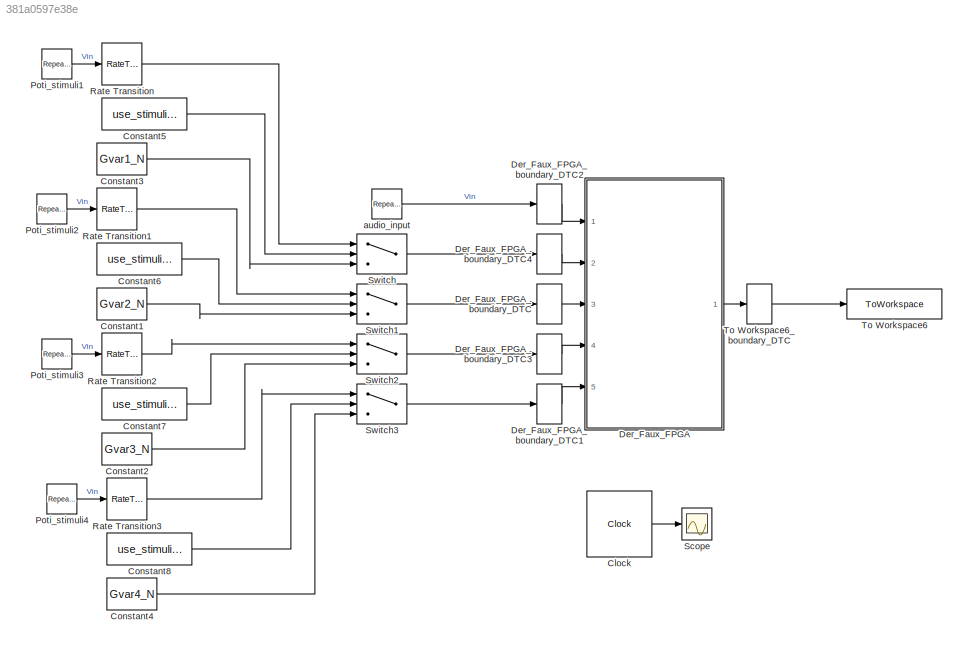
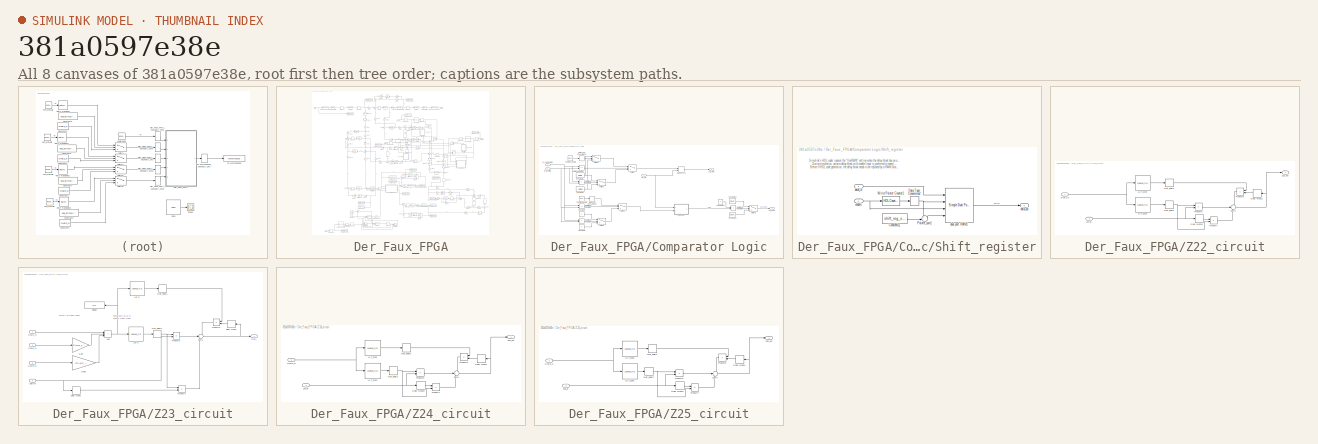
[diagram: thumbnail index - all 8 canvases of the model, root first then tree order]
MODEL slx_381a0597e38e
KIND model
CONFIG AbsTol = auto
CONFIG EnableMultiTasking = off
CONFIG FixedStep = 1/fs_sim
CONFIG MaxStep = auto
CONFIG MinStep = auto
CONFIG RelTol = 1e-3
CONFIG SampleTimeConstraint = Unconstrained
CONFIG Solver = FixedStepDiscrete
CONFIG SolverName = FixedStepDiscrete
CONFIG StartTime = 0.0
CONFIG StopTime = 0.84375
BLOCK [Clock] Clock
  DisplayTime = on
BLOCK [Constant] Constant1
  LockScale = on
  OutDataTypeStr = fixdt(0,ADC_res,0)
  SampleTime = 1/fs_sim
  Value = Gvar2_N
BLOCK [Constant] Constant2
  LockScale = on
  OutDataTypeStr = fixdt(0,ADC_res,0)
  SampleTime = 1/fs_sim
  Value = Gvar3_N
BLOCK [Constant] Constant3
  LockScale = on
  OutDataTypeStr = fixdt(0,ADC_res,0)
  SampleTime = 1/fs_sim
  Value = Gvar1_N
BLOCK [Constant] Constant4
  LockScale = on
  OutDataTypeStr = fixdt(0,ADC_res_G4,0)
  SampleTime = 1/(fs_sim)
  Value = Gvar4_N
BLOCK [Constant] Constant5
  LockScale = on
  OutDataTypeStr = boolean
  SampleTime = 1/fs_sim
  Value = use_stimuli(1)
BLOCK [Constant] Constant6
  LockScale = on
  OutDataTypeStr = boolean
  SampleTime = 1/fs_sim
  Value = use_stimuli(2)
BLOCK [Constant] Constant7
  LockScale = on
  OutDataTypeStr = boolean
  SampleTime = 1/fs_sim
  Value = use_stimuli(3)
BLOCK [Constant] Constant8
  LockScale = on
  OutDataTypeStr = boolean
  SampleTime = 1/(fs_sim)
  Value = use_stimuli(4)
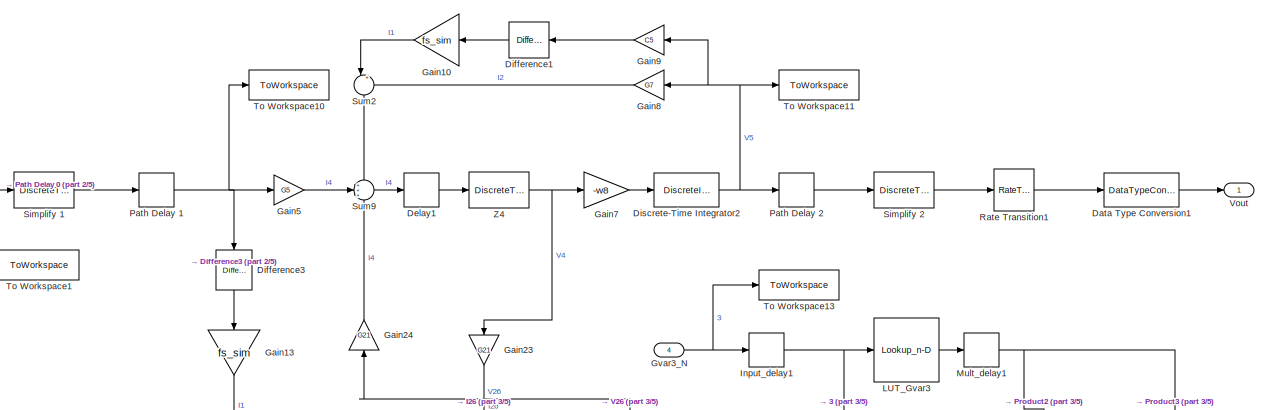
[diagram: Der_Faux_FPGA - part 1/5, top center region]
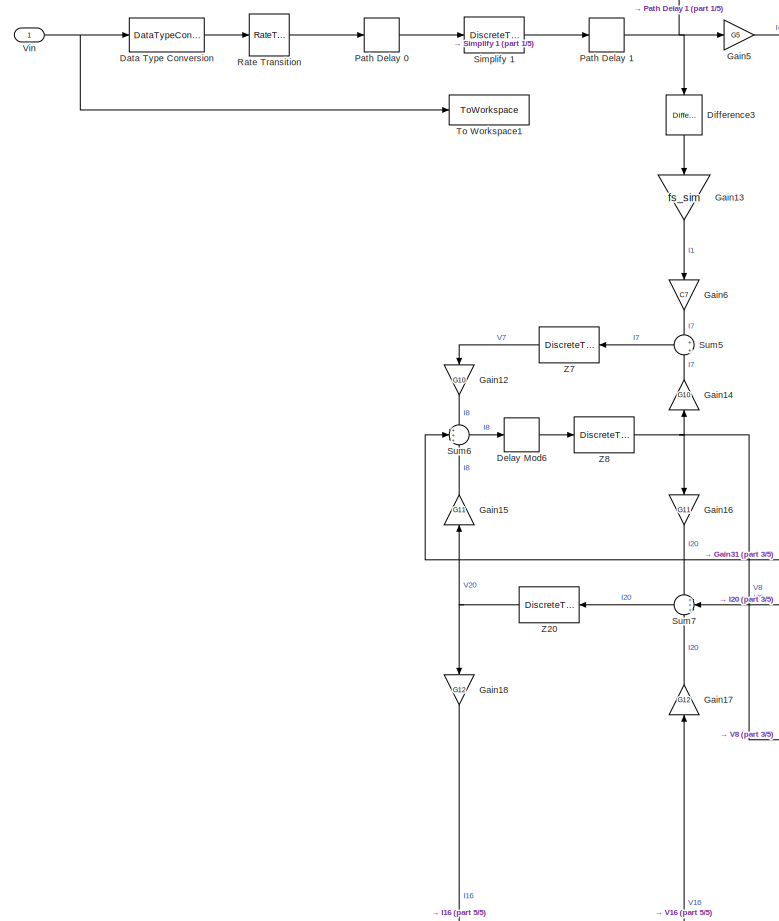
[diagram: Der_Faux_FPGA - part 2/5, middle left region]
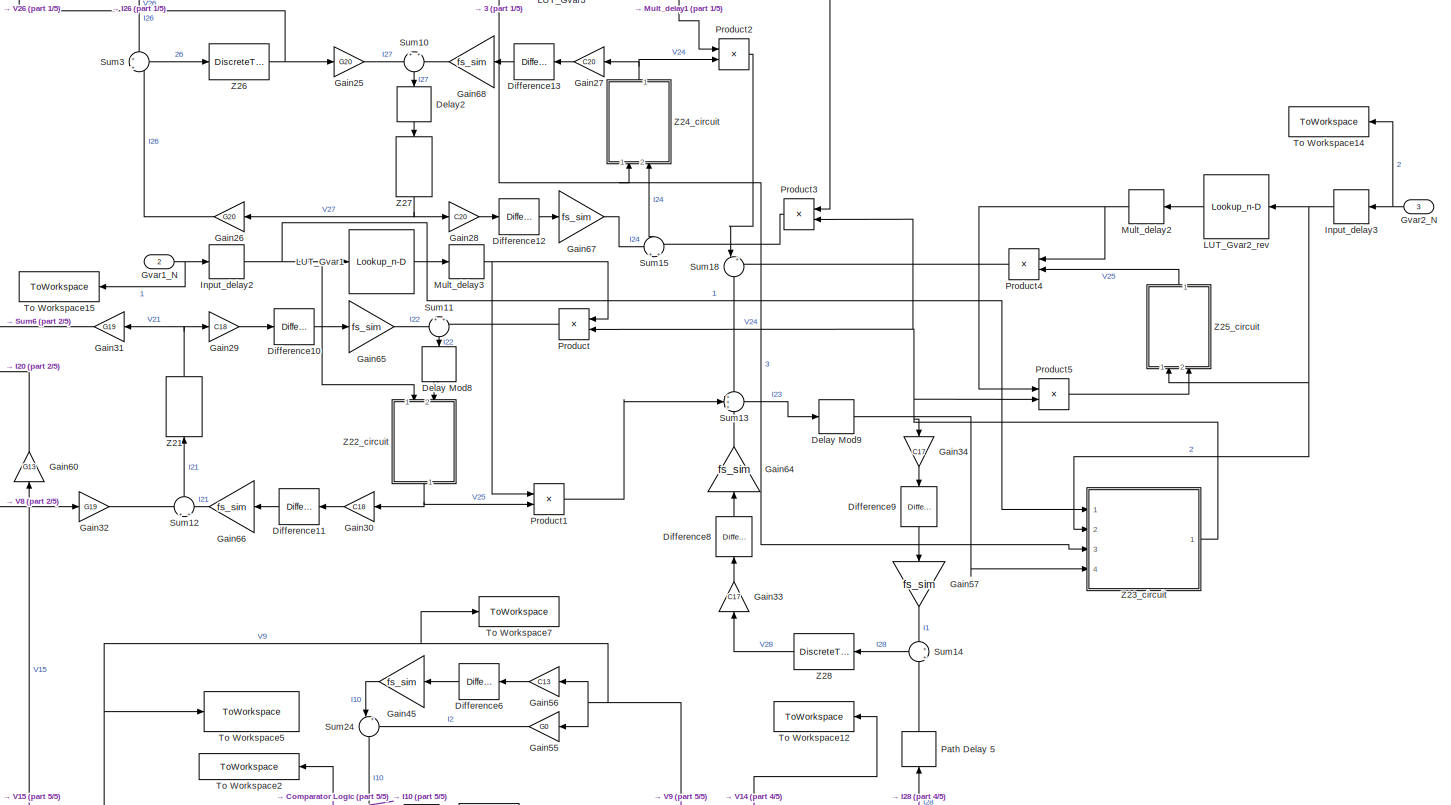
[diagram: Der_Faux_FPGA - part 3/5, central region]
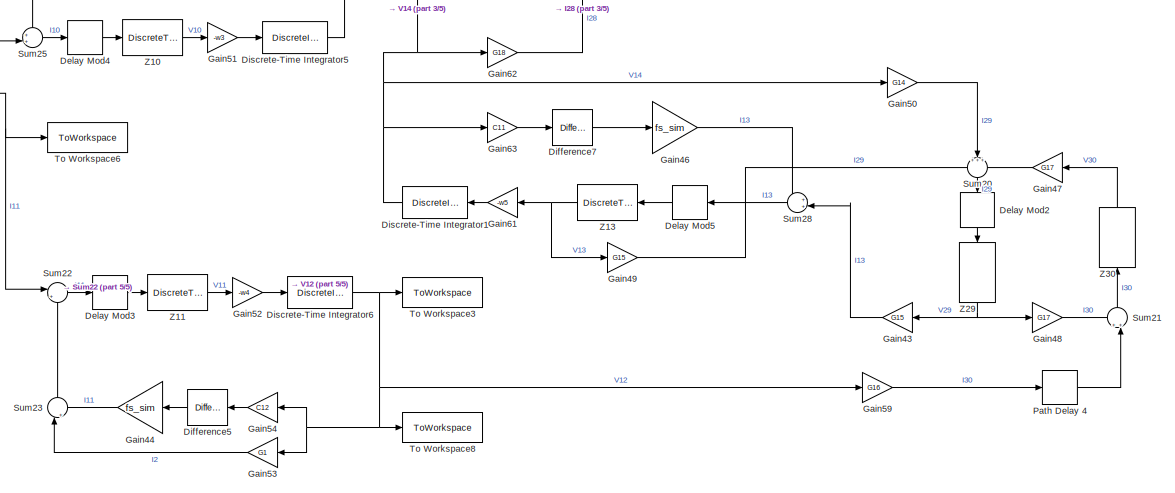
[diagram: Der_Faux_FPGA - part 4/5, bottom right region]
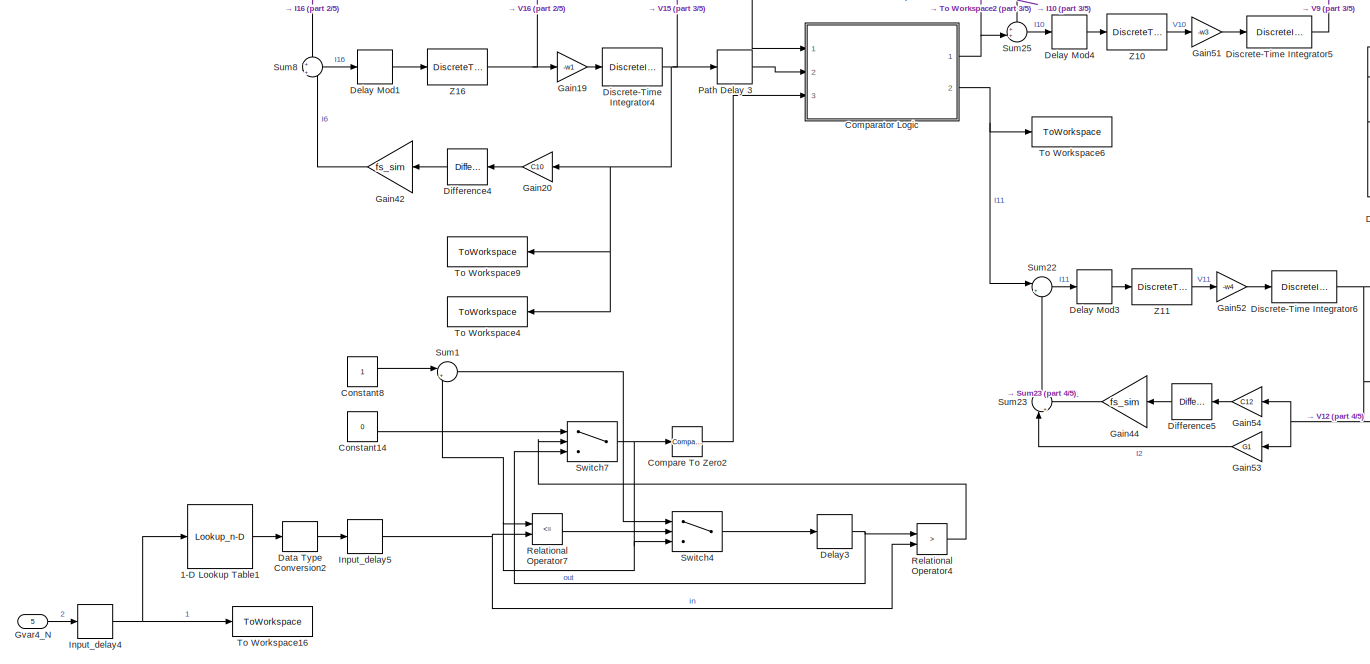
[diagram: Der_Faux_FPGA - part 5/5, bottom center region]
BLOCK [SubSystem] Der_Faux_FPGA
  Ports = [5, 1]
  RequestExecContextInheritance = off
BLOCK [Lookup_n-D] Der_Faux_FPGA/1-D Lookup Table1
  BreakpointsForDimension1 = input_space_G4
  BreakpointsForDimension1DataTypeStr = Inherit: Inherit from 'Breakpoint data'
  BreakpointsForDimension1FirstPoint = 10
  BreakpointsForDimension1Spacing = 12
  BreakpointsForDimension2FirstPoint = 10
  BreakpointsForDimension2Spacing = 12
  DiagnosticForOutOfRangeInput = Error
  IndexSearchMethod = Evenly spaced points
  InternalRulePriority = Speed
  InterpMethod = Flat
  LockScale = on
  LookupTableObject = ''
  NumberOfTableDimensions = 1
  OutDataTypeStr = Inherit: Inherit from 'Table data'
  Ports = [1, 1]
  RndMeth = Simplest
  Table = LUT_cd
  TableDataTypeStr = Inherit: Inherit from 'Table data'
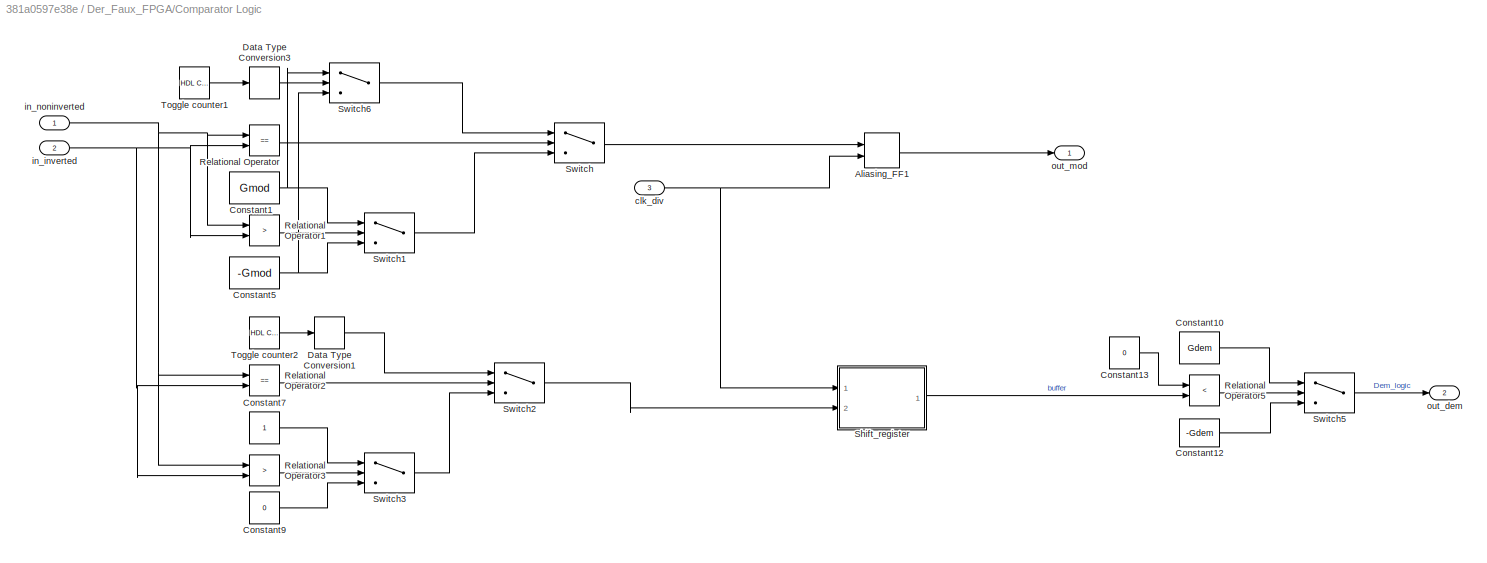
BLOCK [SubSystem] Der_Faux_FPGA/Comparator Logic
  Ports = [3, 2]
  RequestExecContextInheritance = off
BLOCK [Delay] Der_Faux_FPGA/Comparator Logic/Aliasing_FF1
  DelayLength = 1
  InitialCondition = 0
  InputPortMap = u0,e6
  Ports = [2, 1]
  SampleTime = 1/(fs_sim)
  ShowEnablePort = on
BLOCK [Constant] Der_Faux_FPGA/Comparator Logic/Constant1
  OutDataTypeStr = fixdt(0,46,56)
  SampleTime = 1/fs_sim
  Value = Gmod
BLOCK [Constant] Der_Faux_FPGA/Comparator Logic/Constant10
  OutDataTypeStr = fixdt(0,46,56)
  SampleTime = -1
  Value = Gdem
BLOCK [Constant] Der_Faux_FPGA/Comparator Logic/Constant12
  OutDataTypeStr = fixdt(1,46,55)
  SampleTime = -1
  Value = -Gdem
BLOCK [Constant] Der_Faux_FPGA/Comparator Logic/Constant13
  LockScale = on
  OutDataTypeStr = fixdt('boolean', 'DataTypeOverride', 'Off')
  SampleTime = 1/fs_sim
  Value = 0
BLOCK [Constant] Der_Faux_FPGA/Comparator Logic/Constant5
  OutDataTypeStr = fixdt(1,46,55)
  SampleTime = 1/fs_sim
  Value = -Gmod
BLOCK [Constant] Der_Faux_FPGA/Comparator Logic/Constant7
  LockScale = on
  OutDataTypeStr = fixdt('boolean', 'DataTypeOverride', 'Off')
  SampleTime = 1/fs_sim
BLOCK [Constant] Der_Faux_FPGA/Comparator Logic/Constant9
  LockScale = on
  OutDataTypeStr = fixdt('boolean', 'DataTypeOverride', 'Off')
  SampleTime = 1/fs_sim
  Value = 0
BLOCK [DataTypeConversion] Der_Faux_FPGA/Comparator Logic/Data Type Conversion1
  RndMeth = Floor
  SaturateOnIntegerOverflow = off
BLOCK [DataTypeConversion] Der_Faux_FPGA/Comparator Logic/Data Type Conversion3
  LockScale = on
  OutDataTypeStr = fixdt('boolean', 'DataTypeOverride', 'Off')
  RndMeth = Floor
  SaturateOnIntegerOverflow = off
BLOCK [RelationalOperator] Der_Faux_FPGA/Comparator Logic/Relational Operator
  InputSameDT = off
  Operator = ==
  OutDataTypeStr = boolean
  Ports = [2, 1]
BLOCK [RelationalOperator] Der_Faux_FPGA/Comparator Logic/Relational Operator1
  InputSameDT = off
  Operator = >
  OutDataTypeStr = boolean
  Ports = [2, 1]
BLOCK [RelationalOperator] Der_Faux_FPGA/Comparator Logic/Relational Operator2
  InputSameDT = off
  Operator = ==
  OutDataTypeStr = fixdt('boolean', 'DataTypeOverride', 'Off')
  Ports = [2, 1]
BLOCK [RelationalOperator] Der_Faux_FPGA/Comparator Logic/Relational Operator3
  InputSameDT = off
  Operator = >
  OutDataTypeStr = fixdt('boolean', 'DataTypeOverride', 'Off')
  Ports = [2, 1]
BLOCK [RelationalOperator] Der_Faux_FPGA/Comparator Logic/Relational Operator5
  InputSameDT = off
  NameLocation = right
  Operator = <
  OutDataTypeStr = fixdt('boolean', 'DataTypeOverride', 'Off')
  Ports = [2, 1]
BLOCK [SubSystem] Der_Faux_FPGA/Comparator Logic/Shift_register
  Ports = [2, 1]
  RequestExecContextInheritance = off
BLOCK [Constant] Der_Faux_FPGA/Comparator Logic/Shift_register/Constant11
  LockScale = on
  OutDataTypeStr = fixdt(0,ceil(log2(shift_reg_size)),0, 'DataTypeOverride', 'Off')
  SampleTime = 1/(fs_sim)
  Value = shift_reg_size
BLOCK [DataTypeConversion] Der_Faux_FPGA/Comparator Logic/Shift_register/Data Type Conversion2
  LockScale = on
  OutDataTypeStr = fixdt(0,ceil(log2(shift_reg_size)),0, 'DataTypeOverride', 'Off')
  RndMeth = Floor
  SaturateOnIntegerOverflow = off
BLOCK [Sum] Der_Faux_FPGA/Comparator Logic/Shift_register/Pointer_sum1
  Inputs = +-|
  LockScale = on
  OutDataTypeStr = fixdt(0,ceil(log2(shift_reg_size)),0, 'DataTypeOverride', 'Off')
  Ports = [2, 1]
BLOCK [Reference] Der_Faux_FPGA/Comparator Logic/Shift_register/Write Pointer Counter1  REF=hdlsllib/Sources/HDL Counter
  NameLocation = top
  Ports = [1, 1]
  SourceBlock = hdlsllib/Sources/HDL Counter
  SourceProductBaseCode = SL
  SourceType = HDL Counter
BLOCK [Inport] Der_Faux_FPGA/Comparator Logic/Shift_register/data_in
  Port = 2
BLOCK [Outport] Der_Faux_FPGA/Comparator Logic/Shift_register/data_out
BLOCK [Reference] Der_Faux_FPGA/Comparator Logic/Shift_register/dual-port RAM1  REF=hdlsllib/HDL RAMs/Simple Dual Port RAM
  Ports = [4, 1]
  SourceBlock = hdlsllib/HDL RAMs/Simple Dual Port RAM
  SourceProductBaseCode = SL
  SourceType = Simple Dual-port RAM
BLOCK [Inport] Der_Faux_FPGA/Comparator Logic/Shift_register/enable
BLOCK [Switch] Der_Faux_FPGA/Comparator Logic/Switch
  Criteria = u2 > Threshold
  InputSameDT = off
  OutDataTypeStr = fixdt(1,46,54)
  SaturateOnIntegerOverflow = off
BLOCK [Switch] Der_Faux_FPGA/Comparator Logic/Switch1
  Criteria = u2 > Threshold
  InputSameDT = off
  OutDataTypeStr = fixdt(1,46,54)
  SaturateOnIntegerOverflow = off
BLOCK [Switch] Der_Faux_FPGA/Comparator Logic/Switch2
  Criteria = u2 > Threshold
  InputSameDT = off
  LockScale = on
  OutDataTypeStr = fixdt('boolean', 'DataTypeOverride', 'Off')
  SaturateOnIntegerOverflow = off
BLOCK [Switch] Der_Faux_FPGA/Comparator Logic/Switch3
  Criteria = u2 > Threshold
  InputSameDT = off
  LockScale = on
  OutDataTypeStr = fixdt('boolean', 'DataTypeOverride', 'Off')
  SaturateOnIntegerOverflow = off
BLOCK [Switch] Der_Faux_FPGA/Comparator Logic/Switch5
  Criteria = u2 > Threshold
  InputSameDT = off
  OutDataTypeStr = fixdt(1,46,54)
  SaturateOnIntegerOverflow = off
BLOCK [Switch] Der_Faux_FPGA/Comparator Logic/Switch6
  Criteria = u2 > Threshold
  InputSameDT = off
  OutDataTypeStr = fixdt(1,46,54)
  SaturateOnIntegerOverflow = off
BLOCK [Reference] Der_Faux_FPGA/Comparator Logic/Toggle counter1  REF=hdlsllib/Sources/HDL Counter
  Ports = [0, 1]
  SourceBlock = hdlsllib/Sources/HDL Counter
  SourceProductBaseCode = SL
  SourceType = HDL Counter
BLOCK [Reference] Der_Faux_FPGA/Comparator Logic/Toggle counter2  REF=hdlsllib/Sources/HDL Counter
  Ports = [0, 1]
  SourceBlock = hdlsllib/Sources/HDL Counter
  SourceProductBaseCode = SL
  SourceType = HDL Counter
BLOCK [Inport] Der_Faux_FPGA/Comparator Logic/clk_div
  LockScale = on
  OutDataTypeStr = fixdt('boolean', 'DataTypeOverride', 'Off')
  Port = 3
  SampleTime = 1/(fs_sim)
BLOCK [Inport] Der_Faux_FPGA/Comparator Logic/in_inverted
  OutDataTypeStr = fixdt(1,46,42)
  Port = 2
  SampleTime = 1/fs_sim
BLOCK [Inport] Der_Faux_FPGA/Comparator Logic/in_noninverted
  NameLocation = top
  OutDataTypeStr = fixdt(1,46,42)
  SampleTime = 1/fs_sim
BLOCK [Outport] Der_Faux_FPGA/Comparator Logic/out_dem
  OutDataTypeStr = fixdt(1,46,54)
  Port = 2
  SampleTime = 1/fs_sim
BLOCK [Outport] Der_Faux_FPGA/Comparator Logic/out_mod
  OutDataTypeStr = fixdt(1,46,54)
  SampleTime = 1/fs_sim
BLOCK [Reference] Der_Faux_FPGA/Compare To Zero2  REF=simulink/Logic and Bit
Operations/Compare
To Zero
  Ports = [1, 1]
  SourceBlock = simulink/Logic and Bit\nOperations/Compare\nTo Zero
  SourceProductBaseCode = SL
  SourceType = Compare To Zero
BLOCK [Constant] Der_Faux_FPGA/Constant14
  LockScale = on
  OutDataTypeStr = fixdt(0,LUT_cd_res,0, 'DataTypeOverride', 'Off')
  SampleTime = 1/(fs_sim)
  Value = 0
BLOCK [Constant] Der_Faux_FPGA/Constant8
  LockScale = on
  OutDataTypeStr = fixdt(0,LUT_cd_res,0, 'DataTypeOverride', 'Off')
  SampleTime = 1/(fs_sim)
BLOCK [DataTypeConversion] Der_Faux_FPGA/Data Type Conversion
  OutDataTypeStr = fixdt(1,46,44)
  RndMeth = Floor
BLOCK [DataTypeConversion] Der_Faux_FPGA/Data Type Conversion1
  LockScale = on
  OutDataTypeStr = fixdt(1,16, 15)
  RndMeth = Floor
BLOCK [DataTypeConversion] Der_Faux_FPGA/Data Type Conversion2
  LockScale = on
  OutDataTypeStr = fixdt(0,LUT_cd_res,0, 'DataTypeOverride', 'Off')
  RndMeth = Floor
  SaturateOnIntegerOverflow = off
BLOCK [Delay] Der_Faux_FPGA/Delay Mod1
  DelayLength = 1
  InitialCondition = 0
  InputPortMap = u0
  Ports = [1, 1]
  SampleTime = 1/fs_sim
BLOCK [Delay] Der_Faux_FPGA/Delay Mod2
  DelayLength = 1
  InitialCondition = 0
  InputPortMap = u0
  NameLocation = left
  Ports = [1, 1]
  SampleTime = 1/fs_sim
BLOCK [Delay] Der_Faux_FPGA/Delay Mod3
  DelayLength = 1
  InitialCondition = 0
  InputPortMap = u0
  Ports = [1, 1]
  SampleTime = 1/fs_sim
BLOCK [Delay] Der_Faux_FPGA/Delay Mod4
  DelayLength = 1
  InitialCondition = 0
  InputPortMap = u0
  Ports = [1, 1]
  SampleTime = 1/fs_sim
BLOCK [Delay] Der_Faux_FPGA/Delay Mod5
  DelayLength = 1
  InitialCondition = 0
  InputPortMap = u0
  NameLocation = top
  Ports = [1, 1]
  SampleTime = 1/fs_sim
BLOCK [Delay] Der_Faux_FPGA/Delay Mod6
  DelayLength = 1
  InitialCondition = 0
  InputPortMap = u0
  Ports = [1, 1]
  SampleTime = 1/fs_sim
BLOCK [Delay] Der_Faux_FPGA/Delay Mod8
  DelayLength = 1
  InitialCondition = 0
  InputPortMap = u0
  NameLocation = left
  Ports = [1, 1]
  SampleTime = 1/fs_sim
BLOCK [Delay] Der_Faux_FPGA/Delay Mod9
  DelayLength = 1
  InitialCondition = 0
  InputPortMap = u0
  Ports = [1, 1]
  SampleTime = 1/fs_sim
BLOCK [Delay] Der_Faux_FPGA/Delay1
  DelayLength = 1
  InputPortMap = u0
  Ports = [1, 1]
BLOCK [Delay] Der_Faux_FPGA/Delay2
  DelayLength = 1
  InputPortMap = u0
  NameLocation = left
  Ports = [1, 1]
BLOCK [Delay] Der_Faux_FPGA/Delay3
  DelayLength = 1
  InputPortMap = u0
  Ports = [1, 1]
  SampleTime = 1/(fs_sim)
BLOCK [Reference] Der_Faux_FPGA/Difference1  REF=simulink/Discrete/Difference
  NameLocation = top
  Ports = [1, 1]
  SourceBlock = simulink/Discrete/Difference
  SourceProductBaseCode = SL
  SourceType = Difference
BLOCK [Reference] Der_Faux_FPGA/Difference10  REF=simulink/Discrete/Difference
  Ports = [1, 1]
  SourceBlock = simulink/Discrete/Difference
  SourceProductBaseCode = SL
  SourceType = Difference
BLOCK [Reference] Der_Faux_FPGA/Difference11  REF=simulink/Discrete/Difference
  NameLocation = top
  Ports = [1, 1]
  SourceBlock = simulink/Discrete/Difference
  SourceProductBaseCode = SL
  SourceType = Difference
BLOCK [Reference] Der_Faux_FPGA/Difference12  REF=simulink/Discrete/Difference
  Ports = [1, 1]
  SourceBlock = simulink/Discrete/Difference
  SourceProductBaseCode = SL
  SourceType = Difference
BLOCK [Reference] Der_Faux_FPGA/Difference13  REF=simulink/Discrete/Difference
  NameLocation = top
  Ports = [1, 1]
  SourceBlock = simulink/Discrete/Difference
  SourceProductBaseCode = SL
  SourceType = Difference
BLOCK [Reference] Der_Faux_FPGA/Difference3  REF=simulink/Discrete/Difference
  NameLocation = left
  Ports = [1, 1]
  SourceBlock = simulink/Discrete/Difference
  SourceProductBaseCode = SL
  SourceType = Difference
BLOCK [Reference] Der_Faux_FPGA/Difference4  REF=simulink/Discrete/Difference
  NameLocation = top
  Ports = [1, 1]
  SourceBlock = simulink/Discrete/Difference
  SourceProductBaseCode = SL
  SourceType = Difference
BLOCK [Reference] Der_Faux_FPGA/Difference5  REF=simulink/Discrete/Difference
  NameLocation = top
  Ports = [1, 1]
  SourceBlock = simulink/Discrete/Difference
  SourceProductBaseCode = SL
  SourceType = Difference
BLOCK [Reference] Der_Faux_FPGA/Difference6  REF=simulink/Discrete/Difference
  NameLocation = top
  Ports = [1, 1]
  SourceBlock = simulink/Discrete/Difference
  SourceProductBaseCode = SL
  SourceType = Difference
BLOCK [Reference] Der_Faux_FPGA/Difference7  REF=simulink/Discrete/Difference
  Ports = [1, 1]
  SourceBlock = simulink/Discrete/Difference
  SourceProductBaseCode = SL
  SourceType = Difference
BLOCK [Reference] Der_Faux_FPGA/Difference8  REF=simulink/Discrete/Difference
  NameLocation = right
  Ports = [1, 1]
  SourceBlock = simulink/Discrete/Difference
  SourceProductBaseCode = SL
  SourceType = Difference
BLOCK [Reference] Der_Faux_FPGA/Difference9  REF=simulink/Discrete/Difference
  NameLocation = left
  Ports = [1, 1]
  SourceBlock = simulink/Discrete/Difference
  SourceProductBaseCode = SL
  SourceType = Difference
BLOCK [DiscreteIntegrator] Der_Faux_FPGA/Discrete-Time Integrator1
  ICPrevOutput = DiscIntNeverNeededParam
  ICPrevScaledInput = DiscIntNeverNeededParam
  InitialConditionSetting = Auto
  IntegratorMethod = Integration: Backward Euler
  LimitOutput = on
  LowerSaturationLimit = -limit_PT2399
  NameLocation = top
  OutDataTypeStr = fixdt(1,46,43)
  Ports = [1, 1]
  SampleTime = 1/fs_sim
  SaturateOnIntegerOverflow = on
  UpperSaturationLimit = limit_PT2399
BLOCK [DiscreteIntegrator] Der_Faux_FPGA/Discrete-Time Integrator2
  ICPrevOutput = DiscIntNeverNeededParam
  ICPrevScaledInput = DiscIntNeverNeededParam
  InitialConditionSetting = Auto
  IntegratorMethod = Integration: Backward Euler
  LimitOutput = on
  LowerSaturationLimit = -limit_Faux
  OutDataTypeStr = fixdt(1,46,42)
  Ports = [1, 1]
  SampleTime = 1/fs_sim
  SaturateOnIntegerOverflow = on
  UpperSaturationLimit = limit_Faux
BLOCK [DiscreteIntegrator] Der_Faux_FPGA/Discrete-Time Integrator4
  ICPrevOutput = DiscIntNeverNeededParam
  ICPrevScaledInput = DiscIntNeverNeededParam
  InitialConditionSetting = Auto
  IntegratorMethod = Integration: Backward Euler
  LimitOutput = on
  LowerSaturationLimit = -limit_PT2399
  OutDataTypeStr = fixdt(1,46,42)
  Ports = [1, 1]
  SampleTime = 1/fs_sim
  SaturateOnIntegerOverflow = on
  UpperSaturationLimit = limit_PT2399
BLOCK [DiscreteIntegrator] Der_Faux_FPGA/Discrete-Time Integrator5
  ICPrevOutput = DiscIntNeverNeededParam
  ICPrevScaledInput = DiscIntNeverNeededParam
  InitialConditionSetting = Auto
  IntegratorMethod = Integration: Backward Euler
  LimitOutput = on
  LowerSaturationLimit = -limit_PT2399
  OutDataTypeStr = fixdt(1,46,42)
  Ports = [1, 1]
  SampleTime = 1/fs_sim
  SaturateOnIntegerOverflow = on
  UpperSaturationLimit = limit_PT2399
BLOCK [DiscreteIntegrator] Der_Faux_FPGA/Discrete-Time Integrator6
  ICPrevOutput = DiscIntNeverNeededParam
  ICPrevScaledInput = DiscIntNeverNeededParam
  InitialConditionSetting = Auto
  IntegratorMethod = Integration: Backward Euler
  LimitOutput = on
  LowerSaturationLimit = -limit_PT2399
  OutDataTypeStr = fixdt(1,46,42)
  Ports = [1, 1]
  SampleTime = 1/fs_sim
  SaturateOnIntegerOverflow = on
  UpperSaturationLimit = limit_PT2399
BLOCK [Gain] Der_Faux_FPGA/Gain10
  Gain = fs_sim
  NameLocation = top
  OutDataTypeStr = fixdt(1,46,59)
  SaturateOnIntegerOverflow = on
BLOCK [Gain] Der_Faux_FPGA/Gain12
  Gain = G10
  NameLocation = left
  OutDataTypeStr = fixdt(1,46,56)
  SaturateOnIntegerOverflow = on
BLOCK [Gain] Der_Faux_FPGA/Gain13
  Gain = fs_sim
  NameLocation = left
  OutDataTypeStr = fixdt(1,46,25)
  SaturateOnIntegerOverflow = on
BLOCK [Gain] Der_Faux_FPGA/Gain14
  Gain = G10
  NameLocation = right
  OutDataTypeStr = fixdt(1,46,56)
  SaturateOnIntegerOverflow = on
BLOCK [Gain] Der_Faux_FPGA/Gain15
  Gain = G11
  NameLocation = right
  OutDataTypeStr = fixdt(1,46,57)
  SaturateOnIntegerOverflow = on
BLOCK [Gain] Der_Faux_FPGA/Gain16
  Gain = G11
  NameLocation = left
  OutDataTypeStr = fixdt(1,46,56)
  SaturateOnIntegerOverflow = on
BLOCK [Gain] Der_Faux_FPGA/Gain17
  Gain = G12
  NameLocation = right
  OutDataTypeStr = fixdt(1,46,57)
  SaturateOnIntegerOverflow = on
BLOCK [Gain] Der_Faux_FPGA/Gain18
  Gain = G12
  NameLocation = left
  OutDataTypeStr = fixdt(1,46,57)
  SaturateOnIntegerOverflow = on
BLOCK [Gain] Der_Faux_FPGA/Gain19
  Gain = -w1
  OutDataTypeStr = fixdt(1,46,24)
  SaturateOnIntegerOverflow = on
BLOCK [Gain] Der_Faux_FPGA/Gain20
  Gain = C10
  OutDataTypeStr = fixdt(1,46,73)
  SaturateOnIntegerOverflow = on
BLOCK [Gain] Der_Faux_FPGA/Gain23
  Gain = G21
  NameLocation = left
  OutDataTypeStr = fixdt(1,46,63)
  SaturateOnIntegerOverflow = on
BLOCK [Gain] Der_Faux_FPGA/Gain24
  Gain = G21
  NameLocation = right
  OutDataTypeStr = fixdt(1,46,57)
  SaturateOnIntegerOverflow = on
BLOCK [Gain] Der_Faux_FPGA/Gain25
  Gain = G20
  OutDataTypeStr = fixdt(1,46,57)
  SaturateOnIntegerOverflow = on
BLOCK [Gain] Der_Faux_FPGA/Gain26
  Gain = G20
  NameLocation = top
  OutDataTypeStr = fixdt(1,46,56)
  SaturateOnIntegerOverflow = on
BLOCK [Gain] Der_Faux_FPGA/Gain27
  Gain = C20
  OutDataTypeStr = fixdt(1,46,63)
  SaturateOnIntegerOverflow = on
BLOCK [Gain] Der_Faux_FPGA/Gain28
  Gain = C20
  NameLocation = top
  OutDataTypeStr = fixdt(1,46,62)
  SaturateOnIntegerOverflow = on
BLOCK [Gain] Der_Faux_FPGA/Gain29
  Gain = C18
  NameLocation = top
  OutDataTypeStr = fixdt(1,46,66)
  SaturateOnIntegerOverflow = on
BLOCK [Gain] Der_Faux_FPGA/Gain30
  Gain = C18
  OutDataTypeStr = fixdt(1,46,66)
  SaturateOnIntegerOverflow = on
BLOCK [Gain] Der_Faux_FPGA/Gain31
  Gain = G19
  OutDataTypeStr = fixdt(1,46,57)
  SaturateOnIntegerOverflow = on
BLOCK [Gain] Der_Faux_FPGA/Gain32
  Gain = G19
  NameLocation = top
  OutDataTypeStr = fixdt(1,46,57)
  SaturateOnIntegerOverflow = on
BLOCK [Gain] Der_Faux_FPGA/Gain33
  Gain = C17
  NameLocation = left
  OutDataTypeStr = fixdt(1,46,63)
  SaturateOnIntegerOverflow = on
BLOCK [Gain] Der_Faux_FPGA/Gain34
  Gain = C17
  NameLocation = right
  OutDataTypeStr = fixdt(1,46,62)
  SaturateOnIntegerOverflow = on
BLOCK [Gain] Der_Faux_FPGA/Gain42
  Gain = fs_sim
  NameLocation = top
  OutDataTypeStr = fixdt(1,46,59)
  SaturateOnIntegerOverflow = on
BLOCK [Gain] Der_Faux_FPGA/Gain43
  Gain = G15
  OutDataTypeStr = fixdt(1,46,60)
  SaturateOnIntegerOverflow = on
BLOCK [Gain] Der_Faux_FPGA/Gain44
  Gain = fs_sim
  NameLocation = top
  OutDataTypeStr = fixdt(1,46,53)
  SaturateOnIntegerOverflow = on
BLOCK [Gain] Der_Faux_FPGA/Gain45
  Gain = fs_sim
  NameLocation = top
  OutDataTypeStr = fixdt(1,46,53)
  SaturateOnIntegerOverflow = on
BLOCK [Gain] Der_Faux_FPGA/Gain46
  Gain = fs_sim
  OutDataTypeStr = fixdt(1,46,60)
  SaturateOnIntegerOverflow = on
BLOCK [Gain] Der_Faux_FPGA/Gain47
  Gain = G17
  OutDataTypeStr = fixdt(1,46,57)
  SaturateOnIntegerOverflow = on
BLOCK [Gain] Der_Faux_FPGA/Gain48
  Gain = G17
  NameLocation = top
  OutDataTypeStr = fixdt(1,46,60)
  SaturateOnIntegerOverflow = on
BLOCK [Gain] Der_Faux_FPGA/Gain49
  Gain = G15
  NameLocation = top
  OutDataTypeStr = fixdt(1,46,64)
  SaturateOnIntegerOverflow = on
BLOCK [Gain] Der_Faux_FPGA/Gain5
  Gain = G5
  OutDataTypeStr = fixdt(1,46,57)
  SaturateOnIntegerOverflow = on
BLOCK [Gain] Der_Faux_FPGA/Gain50
  Gain = G14
  NameLocation = top
  OutDataTypeStr = fixdt(1,46,57)
  SaturateOnIntegerOverflow = on
BLOCK [Gain] Der_Faux_FPGA/Gain51
  Gain = -w3
  OutDataTypeStr = fixdt(1,46,23)
  SaturateOnIntegerOverflow = on
BLOCK [Gain] Der_Faux_FPGA/Gain52
  Gain = -w4
  OutDataTypeStr = fixdt(1,46,23)
  SaturateOnIntegerOverflow = on
BLOCK [Gain] Der_Faux_FPGA/Gain53
  Gain = G1
  OutDataTypeStr = fixdt(1,46,55)
  SaturateOnIntegerOverflow = on
BLOCK [Gain] Der_Faux_FPGA/Gain54
  Gain = C12
  OutDataTypeStr = fixdt(1,46,66)
  SaturateOnIntegerOverflow = on
BLOCK [Gain] Der_Faux_FPGA/Gain55
  Gain = G0
  OutDataTypeStr = fixdt(1,46,55)
  SaturateOnIntegerOverflow = on
BLOCK [Gain] Der_Faux_FPGA/Gain56
  Gain = C13
  OutDataTypeStr = fixdt(1,46,65)
  SaturateOnIntegerOverflow = on
BLOCK [Gain] Der_Faux_FPGA/Gain57
  Gain = fs_sim
  NameLocation = left
  OutDataTypeStr = fixdt(1,46,50)
  SaturateOnIntegerOverflow = on
BLOCK [Gain] Der_Faux_FPGA/Gain59
  Gain = G16
  NameLocation = top
  OutDataTypeStr = fixdt(1,46,56)
  SaturateOnIntegerOverflow = on
BLOCK [Gain] Der_Faux_FPGA/Gain6
  Gain = C7
  NameLocation = left
  OutDataTypeStr = fixdt(1,46,45)
  SaturateOnIntegerOverflow = on
BLOCK [Gain] Der_Faux_FPGA/Gain60
  Gain = G13
  NameLocation = right
  OutDataTypeStr = fixdt(1,46,58)
  SaturateOnIntegerOverflow = on
BLOCK [Gain] Der_Faux_FPGA/Gain61
  Gain = -w5
  NameLocation = top
  OutDataTypeStr = fixdt(1,46,30)
  SaturateOnIntegerOverflow = on
BLOCK [Gain] Der_Faux_FPGA/Gain62
  Gain = G18
  OutDataTypeStr = fixdt(1,46,54)
  SaturateOnIntegerOverflow = on
BLOCK [Gain] Der_Faux_FPGA/Gain63
  Gain = C11
  NameLocation = top
  OutDataTypeStr = fixdt(1,46,73)
  SaturateOnIntegerOverflow = on
BLOCK [Gain] Der_Faux_FPGA/Gain64
  Gain = fs_sim
  NameLocation = right
  OutDataTypeStr = fixdt(1,46,50)
  SaturateOnIntegerOverflow = on
BLOCK [Gain] Der_Faux_FPGA/Gain65
  Gain = fs_sim
  OutDataTypeStr = fixdt(1,46,54)
  SaturateOnIntegerOverflow = on
BLOCK [Gain] Der_Faux_FPGA/Gain66
  Gain = fs_sim
  NameLocation = top
  OutDataTypeStr = fixdt(1,46,54)
  SaturateOnIntegerOverflow = on
BLOCK [Gain] Der_Faux_FPGA/Gain67
  Gain = fs_sim
  OutDataTypeStr = fixdt(1,46,51)
  SaturateOnIntegerOverflow = on
BLOCK [Gain] Der_Faux_FPGA/Gain68
  Gain = fs_sim
  NameLocation = top
  OutDataTypeStr = fixdt(1,46,51)
  SaturateOnIntegerOverflow = on
BLOCK [Gain] Der_Faux_FPGA/Gain7
  Gain = -w8
  OutDataTypeStr = fixdt(1,46,26)
  SaturateOnIntegerOverflow = on
BLOCK [Gain] Der_Faux_FPGA/Gain8
  Gain = G7
  OutDataTypeStr = fixdt(1,46,57)
  SaturateOnIntegerOverflow = on
BLOCK [Gain] Der_Faux_FPGA/Gain9
  Gain = C5
  OutDataTypeStr = fixdt(1,46,76)
  SaturateOnIntegerOverflow = on
BLOCK [Inport] Der_Faux_FPGA/Gvar1_N
  LockScale = on
  OutDataTypeStr = fixdt(0,ADC_res,0, 'DataTypeOverride', 'Off')
  Port = 2
  SampleTime = 1/fs_sim
BLOCK [Inport] Der_Faux_FPGA/Gvar2_N
  LockScale = on
  NameLocation = top
  OutDataTypeStr = fixdt(0,ADC_res,0, 'DataTypeOverride', 'Off')
  Port = 3
  SampleTime = 1/fs_sim
BLOCK [Inport] Der_Faux_FPGA/Gvar3_N
  LockScale = on
  OutDataTypeStr = fixdt(0,ADC_res,0, 'DataTypeOverride', 'Off')
  Port = 4
  SampleTime = 1/fs_sim
BLOCK [Inport] Der_Faux_FPGA/Gvar4_N
  LockScale = on
  OutDataTypeStr = fixdt(0,ADC_res_G4,0, 'DataTypeOverride', 'Off')
  Port = 5
  SampleTime = 1/(fs_sim)
BLOCK [Delay] Der_Faux_FPGA/Input_delay1
  DelayLength = 1
  InputPortMap = u0
  Ports = [1, 1]
BLOCK [Delay] Der_Faux_FPGA/Input_delay2
  DelayLength = 1
  InputPortMap = u0
  Ports = [1, 1]
BLOCK [Delay] Der_Faux_FPGA/Input_delay3
  DelayLength = 1
  InputPortMap = u0
  NameLocation = top
  Ports = [1, 1]
BLOCK [Delay] Der_Faux_FPGA/Input_delay4
  DelayLength = 1
  InputPortMap = u0
  Ports = [1, 1]
BLOCK [Delay] Der_Faux_FPGA/Input_delay5
  DelayLength = 1
  InitialCondition = 1
  InputPortMap = u0
  Ports = [1, 1]
  SampleTime = 1/(fs_sim)
BLOCK [Lookup_n-D] Der_Faux_FPGA/LUT_Gvar1 
  BreakpointsForDimension1 = input_space
  BreakpointsForDimension1FirstPoint = 10
  BreakpointsForDimension1Spacing = 12
  BreakpointsForDimension2FirstPoint = 10
  BreakpointsForDimension2Spacing = 12
  DiagnosticForOutOfRangeInput = Error
  IndexSearchMethod = Evenly spaced points
  InternalRulePriority = Speed
  InterpMethod = Flat
  LockScale = on
  LookupTableObject = ''
  NumberOfTableDimensions = 1
  OutDataTypeStr = Inherit: Inherit from 'Table data'
  Ports = [1, 1]
  RndMeth = Simplest
  Table = LUT_Gvar1_opt
  TableDataTypeStr = Inherit: Inherit from 'Table data'
BLOCK [Lookup_n-D] Der_Faux_FPGA/LUT_Gvar2_rev
  BreakpointsForDimension1 = input_space
  BreakpointsForDimension1DataTypeStr = Inherit: Inherit from 'Breakpoint data'
  BreakpointsForDimension1FirstPoint = 10
  BreakpointsForDimension1Spacing = 12
  BreakpointsForDimension2FirstPoint = 10
  BreakpointsForDimension2Spacing = 12
  DiagnosticForOutOfRangeInput = Error
  IndexSearchMethod = Evenly spaced points
  InternalRulePriority = Speed
  InterpMethod = Flat
  LockScale = on
  LookupTableObject = ''
  NameLocation = top
  NumberOfTableDimensions = 1
  OutDataTypeStr = Inherit: Inherit from 'Table data'
  Ports = [1, 1]
  RndMeth = Simplest
  Table = LUT_Gvar2_reversed_opt
  TableDataTypeStr = Inherit: Inherit from 'Table data'
BLOCK [Lookup_n-D] Der_Faux_FPGA/LUT_Gvar3 
  BreakpointsForDimension1 = input_space
  BreakpointsForDimension1DataTypeStr = Inherit: Inherit from 'Breakpoint data'
  BreakpointsForDimension1FirstPoint = 10
  BreakpointsForDimension1Spacing = 12
  BreakpointsForDimension2FirstPoint = 10
  BreakpointsForDimension2Spacing = 12
  DiagnosticForOutOfRangeInput = Error
  IndexSearchMethod = Evenly spaced points
  InternalRulePriority = Speed
  InterpMethod = Flat
  LockScale = on
  LookupTableObject = ''
  NumberOfTableDimensions = 1
  OutDataTypeStr = Inherit: Inherit from 'Table data'
  Ports = [1, 1]
  RndMeth = Simplest
  Table = LUT_Gvar3_opt
  TableDataTypeStr = Inherit: Inherit from 'Table data'
BLOCK [Delay] Der_Faux_FPGA/Mult_delay1
  DelayLength = 1
  InputPortMap = u0
  Ports = [1, 1]
BLOCK [Delay] Der_Faux_FPGA/Mult_delay2
  DelayLength = 1
  InputPortMap = u0
  NameLocation = top
  Ports = [1, 1]
BLOCK [Delay] Der_Faux_FPGA/Mult_delay3
  DelayLength = 1
  InputPortMap = u0
  Ports = [1, 1]
BLOCK [Delay] Der_Faux_FPGA/Path Delay 0
  DelayLength = 1
  InputPortMap = u0
  Ports = [1, 1]
BLOCK [Delay] Der_Faux_FPGA/Path Delay 1
  DelayLength = 1
  InputPortMap = u0
  Ports = [1, 1]
BLOCK [Delay] Der_Faux_FPGA/Path Delay 2
  DelayLength = 1
  InputPortMap = u0
  Ports = [1, 1]
BLOCK [Delay] Der_Faux_FPGA/Path Delay 3
  DelayLength = 1
  InputPortMap = u0
  Ports = [1, 1]
BLOCK [Delay] Der_Faux_FPGA/Path Delay 4
  DelayLength = 1
  InputPortMap = u0
  Ports = [1, 1]
BLOCK [Delay] Der_Faux_FPGA/Path Delay 5
  DelayLength = 1
  InputPortMap = u0
  NameLocation = right
  Ports = [1, 1]
BLOCK [Product] Der_Faux_FPGA/Product
  NameLocation = top
  OutDataTypeStr = fixdt(1,46,52)
  Ports = [2, 1]
  SaturateOnIntegerOverflow = on
BLOCK [Product] Der_Faux_FPGA/Product1
  OutDataTypeStr = fixdt(1,46,52)
  Ports = [2, 1]
  SaturateOnIntegerOverflow = on
BLOCK [Product] Der_Faux_FPGA/Product2
  OutDataTypeStr = fixdt(1,46,53)
  Ports = [2, 1]
  SaturateOnIntegerOverflow = on
BLOCK [Product] Der_Faux_FPGA/Product3
  NameLocation = top
  OutDataTypeStr = fixdt(1,46,53)
  Ports = [2, 1]
  SaturateOnIntegerOverflow = on
BLOCK [Product] Der_Faux_FPGA/Product4
  NameLocation = top
  OutDataTypeStr = fixdt(1,46,51)
  Ports = [2, 1]
  SaturateOnIntegerOverflow = on
BLOCK [Product] Der_Faux_FPGA/Product5
  OutDataTypeStr = fixdt(1,46,51)
  Ports = [2, 1]
  SaturateOnIntegerOverflow = on
BLOCK [RateTransition] Der_Faux_FPGA/Rate Transition
  OutPortSampleTime = 1/fs_sim
BLOCK [RateTransition] Der_Faux_FPGA/Rate Transition1
  OutPortSampleTime = 1/fs
  OutPortSampleTimeMultiple = ovs
  OutPortSampleTimeOpt = Multiple of input port sample time
BLOCK [RelationalOperator] Der_Faux_FPGA/Relational Operator4
  InputSameDT = off
  Operator = >
  OutDataTypeStr = boolean
  Ports = [2, 1]
BLOCK [RelationalOperator] Der_Faux_FPGA/Relational Operator7
  InputSameDT = off
  Operator = <=
  OutDataTypeStr = boolean
  Ports = [2, 1]
BLOCK [DiscreteTransferFcn] Der_Faux_FPGA/Simplify 1
  DenAccumDataTypeStr = fixdt(1,46,17)
  DenCoefDataTypeStr = fixdt(1,Dcs1_WL, Dcs1_FL)
  DenProductDataTypeStr = fixdt(1,46,17)
  Denominator = Dcs1_opt
  InputPortMap = u0
  NumAccumDataTypeStr = fixdt(1,46,25)
  NumCoefDataTypeStr = fixdt(1,Ncs1_WL, Ncs1_FL)
  NumProductDataTypeStr = fixdt(1,46,26)
  Numerator = Ncs1_opt
  OutDataTypeStr = fixdt(1,46,43)
  Ports = [1, 1]
  SampleTime = 1/fs_sim
  SaturateOnIntegerOverflow = on
  StateDataTypeStr = fixdt(1,46,18)
BLOCK [DiscreteTransferFcn] Der_Faux_FPGA/Simplify 2
  DenAccumDataTypeStr = fixdt(1,46,26)
  DenCoefDataTypeStr = fixdt(1,Dcs2_WL, Dcs2_FL)
  DenProductDataTypeStr = fixdt(1,46,26)
  Denominator = Dcs2
  InputPortMap = u0
  NumAccumDataTypeStr = fixdt(1,46,26)
  NumCoefDataTypeStr = fixdt(1,Ncs2_WL, Ncs2_FL)
  NumProductDataTypeStr = fixdt(1,46,26)
  Numerator = Ncs2
  OutDataTypeStr = fixdt(1,46,43)
  Ports = [1, 1]
  SampleTime = 1/fs_sim
  SaturateOnIntegerOverflow = on
  StateDataTypeStr = fixdt(1,46,26)
  a0EqualsOne = on
BLOCK [Sum] Der_Faux_FPGA/Sum1
  Inputs = |++
  LockScale = on
  OutDataTypeStr = fixdt(0,LUT_cd_res,0, 'DataTypeOverride', 'Off')
  Ports = [2, 1]
BLOCK [Sum] Der_Faux_FPGA/Sum10
  Inputs = +|+
  NameLocation = left
  OutDataTypeStr = fixdt(1,46,51)
  Ports = [2, 1]
  SaturateOnIntegerOverflow = on
BLOCK [Sum] Der_Faux_FPGA/Sum11
  Inputs = +|+
  NameLocation = left
  OutDataTypeStr = fixdt(1,46,52)
  Ports = [2, 1]
  SaturateOnIntegerOverflow = on
BLOCK [Sum] Der_Faux_FPGA/Sum12
  Inputs = +|+
  NameLocation = right
  OutDataTypeStr = fixdt(1,46,54)
  Ports = [2, 1]
  SaturateOnIntegerOverflow = on
BLOCK [Sum] Der_Faux_FPGA/Sum13
  Inputs = +++
  OutDataTypeStr = fixdt(1,46,50)
  Ports = [3, 1]
  SaturateOnIntegerOverflow = on
BLOCK [Sum] Der_Faux_FPGA/Sum14
  Inputs = +|+
  NameLocation = top
  OutDataTypeStr = fixdt(1,46,50)
  Ports = [2, 1]
  SaturateOnIntegerOverflow = on
BLOCK [Sum] Der_Faux_FPGA/Sum15
  Inputs = +|+
  NameLocation = right
  OutDataTypeStr = fixdt(1,46,51)
  Ports = [2, 1]
  SaturateOnIntegerOverflow = on
BLOCK [Sum] Der_Faux_FPGA/Sum18
  Inputs = |++
  NameLocation = left
  OutDataTypeStr = fixdt(1,46,51)
  Ports = [2, 1]
  SaturateOnIntegerOverflow = on
BLOCK [Sum] Der_Faux_FPGA/Sum2
  Inputs = |++
  NameLocation = left
  OutDataTypeStr = fixdt(1,46,56)
  Ports = [2, 1]
  SaturateOnIntegerOverflow = on
BLOCK [Sum] Der_Faux_FPGA/Sum20
  Inputs = +++
  NameLocation = left
  OutDataTypeStr = fixdt(1,46,58)
  Ports = [3, 1]
  SaturateOnIntegerOverflow = on
BLOCK [Sum] Der_Faux_FPGA/Sum21
  Inputs = ++|
  NameLocation = right
  OutDataTypeStr = fixdt(1,46,56)
  Ports = [2, 1]
  SaturateOnIntegerOverflow = on
BLOCK [Sum] Der_Faux_FPGA/Sum22
  Inputs = |++
  OutDataTypeStr = fixdt(1,46,53)
  Ports = [2, 1]
  SaturateOnIntegerOverflow = on
BLOCK [Sum] Der_Faux_FPGA/Sum23
  Inputs = |++
  NameLocation = right
  OutDataTypeStr = fixdt(1,46,54)
  Ports = [2, 1]
  SaturateOnIntegerOverflow = on
BLOCK [Sum] Der_Faux_FPGA/Sum24
  Inputs = |++
  NameLocation = left
  OutDataTypeStr = fixdt(1,46,54)
  Ports = [2, 1]
  SaturateOnIntegerOverflow = on
BLOCK [Sum] Der_Faux_FPGA/Sum25
  Inputs = ++|
  OutDataTypeStr = fixdt(1,46,53)
  Ports = [2, 1]
  SaturateOnIntegerOverflow = on
BLOCK [Sum] Der_Faux_FPGA/Sum28
  Inputs = ++|
  NameLocation = top
  OutDataTypeStr = fixdt(1,46,64)
  Ports = [2, 1]
  SaturateOnIntegerOverflow = on
BLOCK [Sum] Der_Faux_FPGA/Sum3
  Inputs = +|+
  OutDataTypeStr = fixdt(1,46,56)
  Ports = [2, 1]
  SaturateOnIntegerOverflow = on
BLOCK [Sum] Der_Faux_FPGA/Sum5
  Inputs = +|+
  NameLocation = top
  OutDataTypeStr = fixdt(1,46,45)
  Ports = [2, 1]
  SaturateOnIntegerOverflow = on
BLOCK [Sum] Der_Faux_FPGA/Sum6
  Inputs = +++
  OutDataTypeStr = fixdt(1,46,55)
  Ports = [3, 1]
  SaturateOnIntegerOverflow = on
BLOCK [Sum] Der_Faux_FPGA/Sum7
  Inputs = +++
  NameLocation = top
  OutDataTypeStr = fixdt(1,46,56)
  Ports = [3, 1]
  SaturateOnIntegerOverflow = on
BLOCK [Sum] Der_Faux_FPGA/Sum8
  Inputs = +|+
  OutDataTypeStr = fixdt(1,46,57)
  Ports = [2, 1]
  SaturateOnIntegerOverflow = on
BLOCK [Sum] Der_Faux_FPGA/Sum9
  Inputs = +++
  OutDataTypeStr = fixdt(1,46,60)
  Ports = [3, 1]
  SaturateOnIntegerOverflow = on
BLOCK [Switch] Der_Faux_FPGA/Switch4
  Criteria = u2 > Threshold
  InputSameDT = off
  LockScale = on
  OutDataTypeStr = fixdt(0,LUT_cd_res,0, 'DataTypeOverride', 'Off')
  SaturateOnIntegerOverflow = off
BLOCK [Switch] Der_Faux_FPGA/Switch7
  Criteria = u2 > Threshold
  InputSameDT = off
  LockScale = on
  OutDataTypeStr = fixdt(0,LUT_cd_res,0, 'DataTypeOverride', 'Off')
  SaturateOnIntegerOverflow = off
BLOCK [ToWorkspace] Der_Faux_FPGA/To Workspace1
  FixptAsFi = on
  MaxDataPoints = inf
  Ports = [1]
  SampleTime = 1/fs
  SaveFormat = Timeseries
  VariableName = input_signal
BLOCK [ToWorkspace] Der_Faux_FPGA/To Workspace10
  FixptAsFi = on
  MaxDataPoints = inf
  Ports = [1]
  SampleTime = -1
  SaveFormat = Timeseries
  VariableName = opamp_out7
BLOCK [ToWorkspace] Der_Faux_FPGA/To Workspace11
  FixptAsFi = on
  MaxDataPoints = inf
  Ports = [1]
  SampleTime = -1
  SaveFormat = Timeseries
  VariableName = opamp_out8
BLOCK [ToWorkspace] Der_Faux_FPGA/To Workspace12
  FixptAsFi = on
  MaxDataPoints = inf
  NameLocation = top
  Ports = [1]
  SampleTime = -1
  SaveFormat = Timeseries
  VariableName = opamp_out5
BLOCK [ToWorkspace] Der_Faux_FPGA/To Workspace13
  FixptAsFi = on
  MaxDataPoints = inf
  Ports = [1]
  SampleTime = 1/fs_sim
  SaveFormat = Timeseries
  VariableName = Gvar3_N_sim
BLOCK [ToWorkspace] Der_Faux_FPGA/To Workspace14
  FixptAsFi = on
  MaxDataPoints = inf
  NameLocation = top
  Ports = [1]
  SampleTime = 1/fs_sim
  SaveFormat = Timeseries
  VariableName = Gvar2_N_sim
BLOCK [ToWorkspace] Der_Faux_FPGA/To Workspace15
  FixptAsFi = on
  MaxDataPoints = inf
  NameLocation = top
  Ports = [1]
  SampleTime = 1/fs_sim
  SaveFormat = Timeseries
  VariableName = Gvar1_N_sim
BLOCK [ToWorkspace] Der_Faux_FPGA/To Workspace16
  FixptAsFi = on
  MaxDataPoints = inf
  Ports = [1]
  SampleTime = 1/(fs_sim)
  SaveFormat = Timeseries
  VariableName = Gvar4_N_sim
BLOCK [ToWorkspace] Der_Faux_FPGA/To Workspace2
  FixptAsFi = on
  MaxDataPoints = inf
  NameLocation = top
  Ports = [1]
  SampleTime = -1
  SaveFormat = Timeseries
  VariableName = decicion_comparator
BLOCK [ToWorkspace] Der_Faux_FPGA/To Workspace3
  FixptAsFi = on
  MaxDataPoints = inf
  Ports = [1]
  SampleTime = -1
  SaveFormat = Timeseries
  VariableName = output_dem
BLOCK [ToWorkspace] Der_Faux_FPGA/To Workspace4
  FixptAsFi = on
  MaxDataPoints = inf
  NameLocation = top
  Ports = [1]
  SampleTime = -1
  SaveFormat = Timeseries
  VariableName = comparator_input_n
BLOCK [ToWorkspace] Der_Faux_FPGA/To Workspace5
  FixptAsFi = on
  MaxDataPoints = inf
  Ports = [1]
  SampleTime = -1
  SaveFormat = Timeseries
  VariableName = comparator_input_p
BLOCK [ToWorkspace] Der_Faux_FPGA/To Workspace6
  FixptAsFi = on
  MaxDataPoints = inf
  Ports = [1]
  SampleTime = -1
  SaveFormat = Timeseries
  VariableName = delay_line_output
BLOCK [ToWorkspace] Der_Faux_FPGA/To Workspace7
  FixptAsFi = on
  MaxDataPoints = inf
  Ports = [1]
  SampleTime = -1
  SaveFormat = Timeseries
  VariableName = opamp_out3
BLOCK [ToWorkspace] Der_Faux_FPGA/To Workspace8
  FixptAsFi = on
  MaxDataPoints = inf
  Ports = [1]
  SampleTime = -1
  SaveFormat = Timeseries
  VariableName = opamp_out4
BLOCK [ToWorkspace] Der_Faux_FPGA/To Workspace9
  FixptAsFi = on
  MaxDataPoints = inf
  NameLocation = top
  Ports = [1]
  SampleTime = -1
  SaveFormat = Timeseries
  VariableName = opamp_out1
BLOCK [Inport] Der_Faux_FPGA/Vin
  LockScale = on
  OutDataTypeStr = fixdt(1,16, 15)
  SampleTime = 1/fs
BLOCK [Outport] Der_Faux_FPGA/Vout
BLOCK [DiscreteTransferFcn] Der_Faux_FPGA/Z10
  DenAccumDataTypeStr = fixdt(1,46,43)
  DenCoefDataTypeStr = fixdt(1,D10_WL, D10_FL)
  DenProductDataTypeStr = fixdt(1,46,43)
  Denominator = D10_opt
  InputPortMap = u0
  NumAccumDataTypeStr = fixdt(1,46,43)
  NumCoefDataTypeStr = fixdt(1,N10_WL, N10_FL)
  NumProductDataTypeStr = fixdt(1,46,44)
  Numerator = N10_opt
  OutDataTypeStr = fixdt(1,46,43)
  Ports = [1, 1]
  SampleTime = 1/fs_sim
  SaturateOnIntegerOverflow = on
  StateDataTypeStr = fixdt(1,46,43)
BLOCK [DiscreteTransferFcn] Der_Faux_FPGA/Z11
  DenAccumDataTypeStr = fixdt(1,46,44)
  DenCoefDataTypeStr = fixdt(1,D11_WL, D11_FL)
  DenProductDataTypeStr = fixdt(1,46,44)
  Denominator = D11_opt
  InputPortMap = u0
  NumAccumDataTypeStr = fixdt(1,46,43)
  NumCoefDataTypeStr = fixdt(1,N11_WL, N11_FL)
  NumProductDataTypeStr = fixdt(1,46,44)
  Numerator = N11_opt
  OutDataTypeStr = fixdt(1,46,43)
  Ports = [1, 1]
  SampleTime = 1/fs_sim
  SaturateOnIntegerOverflow = on
  StateDataTypeStr = fixdt(1,46,44)
BLOCK [DiscreteTransferFcn] Der_Faux_FPGA/Z13
  DenAccumDataTypeStr = fixdt(1,46,57)
  DenCoefDataTypeStr = fixdt(1,D13_WL, D13_FL)
  DenProductDataTypeStr = fixdt(1,46,57)
  Denominator = D13_opt
  InputPortMap = u0
  NameLocation = top
  NumAccumDataTypeStr = fixdt(1,46,50)
  NumCoefDataTypeStr = fixdt(1,N13_WL, N13_FL)
  NumProductDataTypeStr = fixdt(1,46,51)
  Numerator = N13_opt
  OutDataTypeStr = fixdt(1,46,50)
  Ports = [1, 1]
  SampleTime = 1/fs_sim
  SaturateOnIntegerOverflow = on
  StateDataTypeStr = fixdt(1,46,57)
BLOCK [DiscreteTransferFcn] Der_Faux_FPGA/Z16
  DenAccumDataTypeStr = fixdt(1,46,52)
  DenCoefDataTypeStr = fixdt(1,D16_WL, D16_FL)
  DenProductDataTypeStr = fixdt(1,46,52)
  Denominator = D16_opt
  InputPortMap = u0
  NumAccumDataTypeStr = fixdt(1,46,44)
  NumCoefDataTypeStr = fixdt(1,N16_WL, N16_FL)
  NumProductDataTypeStr = fixdt(1,46,45)
  Numerator = N16_opt
  OutDataTypeStr = fixdt(1,46,44)
  Ports = [1, 1]
  SampleTime = 1/fs_sim
  SaturateOnIntegerOverflow = on
  StateDataTypeStr = fixdt(1,46,52)
BLOCK [DiscreteTransferFcn] Der_Faux_FPGA/Z20
  DenAccumDataTypeStr = fixdt(1,46,48)
  DenCoefDataTypeStr = fixdt(1,D20_WL, D20_FL)
  DenProductDataTypeStr = fixdt(1,46,48)
  Denominator = D20_opt
  InputPortMap = u0
  NameLocation = top
  NumAccumDataTypeStr = fixdt(1,46,44)
  NumCoefDataTypeStr = fixdt(1,N20_WL, N20_FL)
  NumProductDataTypeStr = fixdt(1,46,45)
  Numerator = N20_opt
  OutDataTypeStr = fixdt(1,46,44)
  Ports = [1, 1]
  SampleTime = 1/fs_sim
  SaturateOnIntegerOverflow = on
  StateDataTypeStr = fixdt(1,46,48)
BLOCK [DiscreteTransferFcn] Der_Faux_FPGA/Z21
  DenAccumDataTypeStr = fixdt(1,46,43)
  DenCoefDataTypeStr = fixdt(1,D21_WL, D21_FL)
  DenProductDataTypeStr = fixdt(1,46,43)
  Denominator = D21_opt
  InputPortMap = u0
  NameLocation = right
  NumAccumDataTypeStr = fixdt(1,46,43)
  NumCoefDataTypeStr = fixdt(1,N21_WL, N21_FL)
  NumProductDataTypeStr = fixdt(1,46,44)
  Numerator = N21_opt
  OutDataTypeStr = fixdt(1,46,43)
  Ports = [1, 1]
  SampleTime = 1/fs_sim
  SaturateOnIntegerOverflow = on
  StateDataTypeStr = fixdt(1,46,43)
BLOCK [SubSystem] Der_Faux_FPGA/Z22_circuit
  NameLocation = left
  Ports = [2, 1]
  RequestExecContextInheritance = off
BLOCK [Delay] Der_Faux_FPGA/Z22_circuit/Delay Mod10
  DelayLength = 1
  InitialCondition = 0
  InputPortMap = u0
  Ports = [1, 1]
  SampleTime = 1/fs_sim
BLOCK [Delay] Der_Faux_FPGA/Z22_circuit/Delay Mod11
  DelayLength = 1
  InitialCondition = 0
  InputPortMap = u0
  NameLocation = top
  Ports = [1, 1]
  SampleTime = 1/fs_sim
BLOCK [Inport] Der_Faux_FPGA/Z22_circuit/Gvar1_N
  LockScale = on
  OutDataTypeStr = fixdt(0,ADC_res,0, 'DataTypeOverride', 'Off')
  SampleTime = 1/fs_sim
BLOCK [Lookup_n-D] Der_Faux_FPGA/Z22_circuit/LUT_Z22a
  BreakpointsForDimension1 = input_space
  BreakpointsForDimension1DataTypeStr = Inherit: Inherit from 'Breakpoint data'
  BreakpointsForDimension1FirstPoint = 10
  BreakpointsForDimension1Spacing = 12
  BreakpointsForDimension2FirstPoint = 10
  BreakpointsForDimension2Spacing = 12
  DiagnosticForOutOfRangeInput = Error
  IndexSearchMethod = Evenly spaced points
  InternalRulePriority = Speed
  InterpMethod = Flat
  LockScale = on
  LookupTableObject = ''
  NumberOfTableDimensions = 1
  OutDataTypeStr = Inherit: Inherit from 'Table data'
  Ports = [1, 1]
  RndMeth = Simplest
  Table = LUT_Z22a_opt
  TableDataTypeStr = Inherit: Inherit from 'Table data'
BLOCK [Lookup_n-D] Der_Faux_FPGA/Z22_circuit/LUT_Z22b
  BreakpointsForDimension1 = input_space
  BreakpointsForDimension1DataTypeStr = Inherit: Inherit from 'Breakpoint data'
  BreakpointsForDimension1FirstPoint = 10
  BreakpointsForDimension1Spacing = 12
  BreakpointsForDimension2FirstPoint = 10
  BreakpointsForDimension2Spacing = 12
  DiagnosticForOutOfRangeInput = Error
  IndexSearchMethod = Evenly spaced points
  InternalRulePriority = Speed
  InterpMethod = Flat
  LockScale = on
  LookupTableObject = ''
  NumberOfTableDimensions = 1
  OutDataTypeStr = Inherit: Inherit from 'Table data'
  Ports = [1, 1]
  RndMeth = Simplest
  Table = LUT_Z22b_opt
  TableDataTypeStr = Inherit: Inherit from 'Table data'
BLOCK [Delay] Der_Faux_FPGA/Z22_circuit/Mult_delay1
  DelayLength = 1
  InputPortMap = u0
  Ports = [1, 1]
BLOCK [Delay] Der_Faux_FPGA/Z22_circuit/Mult_delay2
  DelayLength = 1
  InputPortMap = u0
  Ports = [1, 1]
BLOCK [Product] Der_Faux_FPGA/Z22_circuit/Product6
  OutDataTypeStr = fixdt(1,46,53)
  Ports = [2, 1]
  SaturateOnIntegerOverflow = on
BLOCK [Product] Der_Faux_FPGA/Z22_circuit/Product7
  OutDataTypeStr = fixdt(1,46,53)
  Ports = [2, 1]
  SaturateOnIntegerOverflow = on
BLOCK [Product] Der_Faux_FPGA/Z22_circuit/Product8
  NameLocation = top
  OutDataTypeStr = fixdt(1,46,43)
  Ports = [2, 1]
  SaturateOnIntegerOverflow = on
BLOCK [Sum] Der_Faux_FPGA/Z22_circuit/Sum4
  Inputs = -++
  OutDataTypeStr = fixdt(1,46,43)
  Ports = [3, 1]
  SaturateOnIntegerOverflow = on
BLOCK [Inport] Der_Faux_FPGA/Z22_circuit/Z22_in
  OutDataTypeStr = fixdt(1,46,52)
  Port = 2
BLOCK [Outport] Der_Faux_FPGA/Z22_circuit/Z22_out
BLOCK [SubSystem] Der_Faux_FPGA/Z23_circuit
  Ports = [4, 1]
  RequestExecContextInheritance = off
BLOCK [Sum] Der_Faux_FPGA/Z23_circuit/Add
  AccumDataTypeStr = fixdt(0,N_ext,0)
  IconShape = rectangular
  Inputs = +++
  LockScale = on
  Ports = [3, 1]
BLOCK [Inport] Der_Faux_FPGA/Z23_circuit/Data in
  LockScale = on
  Port = 4
  SampleTime = 1/fs_sim
BLOCK [Delay] Der_Faux_FPGA/Z23_circuit/Delay Mod2
  DelayLength = 1
  InitialCondition = 0
  InputPortMap = u0
  Ports = [1, 1]
  SampleTime = 1/fs_sim
BLOCK [Delay] Der_Faux_FPGA/Z23_circuit/Delay Mod3
  DelayLength = 1
  InitialCondition = 0
  InputPortMap = u0
  NameLocation = top
  Ports = [1, 1]
  SampleTime = 1/fs_sim
BLOCK [Display] Der_Faux_FPGA/Z23_circuit/Display
  Decimation = 1
  NameLocation = top
  Ports = [1]
BLOCK [Gain] Der_Faux_FPGA/Z23_circuit/Gain
  Gain = 2^ADC_res
  LockScale = on
  OutDataTypeStr = fixdt(0,N_ext,0)
BLOCK [Gain] Der_Faux_FPGA/Z23_circuit/Gain1
  Gain = (2^ADC_res)^2
  LockScale = on
  OutDataTypeStr = fixdt(0,N_ext,0)
BLOCK [Inport] Der_Faux_FPGA/Z23_circuit/Gvar1_N
  LockScale = on
  SampleTime = 1/fs_sim
BLOCK [Inport] Der_Faux_FPGA/Z23_circuit/Gvar2_N
  LockScale = on
  Port = 2
  SampleTime = 1/fs_sim
BLOCK [Inport] Der_Faux_FPGA/Z23_circuit/Gvar3_N
  LockScale = on
  Port = 3
  SampleTime = 1/fs_sim
BLOCK [Lookup_n-D] Der_Faux_FPGA/Z23_circuit/LUT a 
  BreakpointsForDimension1 = input_spcae_extended
  BreakpointsForDimension1DataTypeStr = Inherit: Inherit from 'Breakpoint data'
  BreakpointsForDimension1FirstPoint = 10
  BreakpointsForDimension1Spacing = 12
  BreakpointsForDimension2 = 0:3
  BreakpointsForDimension2DataTypeStr = Inherit: Inherit from 'Breakpoint data'
  BreakpointsForDimension2FirstPoint = 10
  BreakpointsForDimension2Spacing = 12
  BreakpointsForDimension3 = 0:3
  BreakpointsForDimension3DataTypeStr = Inherit: Inherit from 'Breakpoint data'
  DiagnosticForOutOfRangeInput = Error
  IndexSearchMethod = Evenly spaced points
  InternalRulePriority = Speed
  InterpMethod = Flat
  LockScale = on
  LookupTableObject = ''
  NumberOfTableDimensions = 1
  OutDataTypeStr = Inherit: Inherit from 'Table data'
  Ports = [1, 1]
  RndMeth = Simplest
  Table = LUT_Z23a_opt
  TableDataTypeStr = Inherit: Inherit from 'Table data'
BLOCK [Lookup_n-D] Der_Faux_FPGA/Z23_circuit/LUT b
  BreakpointsForDimension1 = input_spcae_extended
  BreakpointsForDimension1DataTypeStr = Inherit: Inherit from 'Breakpoint data'
  BreakpointsForDimension1FirstPoint = 10
  BreakpointsForDimension1Spacing = 12
  BreakpointsForDimension2 = 0:3
  BreakpointsForDimension2DataTypeStr = Inherit: Inherit from 'Breakpoint data'
  BreakpointsForDimension2FirstPoint = 10
  BreakpointsForDimension2Spacing = 12
  BreakpointsForDimension3 = 0:3
  BreakpointsForDimension3DataTypeStr = Inherit: Inherit from 'Breakpoint data'
  DiagnosticForOutOfRangeInput = Error
  IndexSearchMethod = Evenly spaced points
  InternalRulePriority = Speed
  InterpMethod = Flat
  LockScale = on
  LookupTableObject = ''
  NumberOfTableDimensions = 1
  OutDataTypeStr = Inherit: Inherit from 'Table data'
  Ports = [1, 1]
  RndMeth = Simplest
  Table = LUT_Z23b_opt
  TableDataTypeStr = Inherit: Inherit from 'Table data'
BLOCK [Delay] Der_Faux_FPGA/Z23_circuit/Mult_delay1
  DelayLength = 1
  InputPortMap = u0
  Ports = [1, 1]
BLOCK [Delay] Der_Faux_FPGA/Z23_circuit/Mult_delay2
  DelayLength = 1
  InputPortMap = u0
  Ports = [1, 1]
BLOCK [Outport] Der_Faux_FPGA/Z23_circuit/Out1
BLOCK [Product] Der_Faux_FPGA/Z23_circuit/Product3
  OutDataTypeStr = fixdt(1,46,54)
  Ports = [2, 1]
  SaturateOnIntegerOverflow = on
BLOCK [Product] Der_Faux_FPGA/Z23_circuit/Product4
  OutDataTypeStr = fixdt(1,46,54)
  Ports = [2, 1]
  SaturateOnIntegerOverflow = on
BLOCK [Product] Der_Faux_FPGA/Z23_circuit/Product5
  NameLocation = top
  OutDataTypeStr = fixdt(1,46,42)
  Ports = [2, 1]
  SaturateOnIntegerOverflow = on
BLOCK [Sum] Der_Faux_FPGA/Z23_circuit/Sum1
  Inputs = -++
  OutDataTypeStr = fixdt(1,46,42)
  Ports = [3, 1]
  SaturateOnIntegerOverflow = on
BLOCK [SubSystem] Der_Faux_FPGA/Z24_circuit
  NameLocation = right
  Ports = [2, 1]
  RequestExecContextInheritance = off
BLOCK [Delay] Der_Faux_FPGA/Z24_circuit/Delay Mod10
  DelayLength = 1
  InitialCondition = 0
  InputPortMap = u0
  Ports = [1, 1]
  SampleTime = 1/fs_sim
BLOCK [Delay] Der_Faux_FPGA/Z24_circuit/Delay Mod11
  DelayLength = 1
  InitialCondition = 0
  InputPortMap = u0
  NameLocation = top
  Ports = [1, 1]
  SampleTime = 1/fs_sim
BLOCK [Inport] Der_Faux_FPGA/Z24_circuit/Gvar3_N
  LockScale = on
  OutDataTypeStr = fixdt(0,ADC_res,0, 'DataTypeOverride', 'Off')
  SampleTime = 1/fs_sim
BLOCK [Lookup_n-D] Der_Faux_FPGA/Z24_circuit/LUT_Z24a
  BreakpointsForDimension1 = input_space
  BreakpointsForDimension1DataTypeStr = Inherit: Inherit from 'Breakpoint data'
  BreakpointsForDimension1FirstPoint = 10
  BreakpointsForDimension1Spacing = 12
  BreakpointsForDimension2FirstPoint = 10
  BreakpointsForDimension2Spacing = 12
  DiagnosticForOutOfRangeInput = Error
  IndexSearchMethod = Evenly spaced points
  InternalRulePriority = Speed
  InterpMethod = Flat
  LockScale = on
  LookupTableObject = ''
  NumberOfTableDimensions = 1
  OutDataTypeStr = Inherit: Inherit from 'Table data'
  Ports = [1, 1]
  RndMeth = Simplest
  Table = LUT_Z24a_opt
  TableDataTypeStr = Inherit: Inherit from 'Table data'
BLOCK [Lookup_n-D] Der_Faux_FPGA/Z24_circuit/LUT_Z24b
  BreakpointsForDimension1 = input_space
  BreakpointsForDimension1DataTypeStr = Inherit: Inherit from 'Breakpoint data'
  BreakpointsForDimension1FirstPoint = 10
  BreakpointsForDimension1Spacing = 12
  BreakpointsForDimension2FirstPoint = 10
  BreakpointsForDimension2Spacing = 12
  DiagnosticForOutOfRangeInput = Error
  IndexSearchMethod = Evenly spaced points
  InternalRulePriority = Speed
  InterpMethod = Flat
  LockScale = on
  LookupTableObject = ''
  NumberOfTableDimensions = 1
  OutDataTypeStr = Inherit: Inherit from 'Table data'
  Ports = [1, 1]
  RndMeth = Simplest
  Table = LUT_Z24b_opt
  TableDataTypeStr = Inherit: Inherit from 'Table data'
BLOCK [Delay] Der_Faux_FPGA/Z24_circuit/Mult_delay1
  DelayLength = 1
  InputPortMap = u0
  Ports = [1, 1]
BLOCK [Delay] Der_Faux_FPGA/Z24_circuit/Mult_delay2
  DelayLength = 1
  InputPortMap = u0
  Ports = [1, 1]
BLOCK [Product] Der_Faux_FPGA/Z24_circuit/Product6
  OutDataTypeStr = fixdt(1,46,54)
  Ports = [2, 1]
  SaturateOnIntegerOverflow = on
BLOCK [Product] Der_Faux_FPGA/Z24_circuit/Product7
  OutDataTypeStr = fixdt(1,46,54)
  Ports = [2, 1]
  SaturateOnIntegerOverflow = on
BLOCK [Product] Der_Faux_FPGA/Z24_circuit/Product8
  NameLocation = top
  OutDataTypeStr = fixdt(1,46,43)
  Ports = [2, 1]
  SaturateOnIntegerOverflow = on
BLOCK [Sum] Der_Faux_FPGA/Z24_circuit/Sum4
  Inputs = -++
  OutDataTypeStr = fixdt(1,46,43)
  Ports = [3, 1]
  SaturateOnIntegerOverflow = on
BLOCK [Inport] Der_Faux_FPGA/Z24_circuit/Z24_in
  OutDataTypeStr = fixdt(1,46,51)
  Port = 2
BLOCK [Outport] Der_Faux_FPGA/Z24_circuit/Z24_out
BLOCK [SubSystem] Der_Faux_FPGA/Z25_circuit
  NameLocation = right
  Ports = [2, 1]
  RequestExecContextInheritance = off
BLOCK [Delay] Der_Faux_FPGA/Z25_circuit/Delay Mod10
  DelayLength = 1
  InitialCondition = 0
  InputPortMap = u0
  Ports = [1, 1]
  SampleTime = 1/fs_sim
BLOCK [Delay] Der_Faux_FPGA/Z25_circuit/Delay Mod11
  DelayLength = 1
  InitialCondition = 0
  InputPortMap = u0
  NameLocation = top
  Ports = [1, 1]
  SampleTime = 1/fs_sim
BLOCK [Inport] Der_Faux_FPGA/Z25_circuit/Gvar2_N
  LockScale = on
  OutDataTypeStr = fixdt(0,ADC_res,0, 'DataTypeOverride', 'Off')
  SampleTime = 1/fs_sim
BLOCK [Lookup_n-D] Der_Faux_FPGA/Z25_circuit/LUT_Z25a
  BreakpointsForDimension1 = input_space
  BreakpointsForDimension1FirstPoint = 10
  BreakpointsForDimension1Spacing = 12
  BreakpointsForDimension2FirstPoint = 10
  BreakpointsForDimension2Spacing = 12
  DiagnosticForOutOfRangeInput = Error
  IndexSearchMethod = Evenly spaced points
  InternalRulePriority = Speed
  InterpMethod = Flat
  LockScale = on
  LookupTableObject = ''
  NumberOfTableDimensions = 1
  OutDataTypeStr = Inherit: Inherit from 'Table data'
  Ports = [1, 1]
  RndMeth = Simplest
  Table = LUT_Z25a_opt
  TableDataTypeStr = Inherit: Inherit from 'Table data'
BLOCK [Lookup_n-D] Der_Faux_FPGA/Z25_circuit/LUT_Z25b
  BreakpointsForDimension1 = input_space
  BreakpointsForDimension1FirstPoint = 10
  BreakpointsForDimension1Spacing = 12
  BreakpointsForDimension2FirstPoint = 10
  BreakpointsForDimension2Spacing = 12
  DiagnosticForOutOfRangeInput = Error
  IndexSearchMethod = Evenly spaced points
  InternalRulePriority = Speed
  InterpMethod = Flat
  LockScale = on
  LookupTableObject = ''
  NumberOfTableDimensions = 1
  OutDataTypeStr = Inherit: Inherit from 'Table data'
  Ports = [1, 1]
  RndMeth = Simplest
  Table = LUT_Z25b_opt
  TableDataTypeStr = Inherit: Inherit from 'Table data'
BLOCK [Delay] Der_Faux_FPGA/Z25_circuit/Mult_delay1
  DelayLength = 1
  InputPortMap = u0
  Ports = [1, 1]
BLOCK [Delay] Der_Faux_FPGA/Z25_circuit/Mult_delay2
  DelayLength = 1
  InputPortMap = u0
  Ports = [1, 1]
BLOCK [Product] Der_Faux_FPGA/Z25_circuit/Product6
  OutDataTypeStr = fixdt(1,46,50)
  Ports = [2, 1]
  SaturateOnIntegerOverflow = on
BLOCK [Product] Der_Faux_FPGA/Z25_circuit/Product7
  OutDataTypeStr = fixdt(1,46,50)
  Ports = [2, 1]
  SaturateOnIntegerOverflow = on
BLOCK [Product] Der_Faux_FPGA/Z25_circuit/Product8
  NameLocation = top
  OutDataTypeStr = fixdt(1,46,42)
  Ports = [2, 1]
  SaturateOnIntegerOverflow = on
BLOCK [Sum] Der_Faux_FPGA/Z25_circuit/Sum4
  Inputs = -++
  OutDataTypeStr = fixdt(1,46,42)
  Ports = [3, 1]
  SaturateOnIntegerOverflow = on
BLOCK [Inport] Der_Faux_FPGA/Z25_circuit/Z25_in
  OutDataTypeStr = fixdt(1,46,51)
  Port = 2
BLOCK [Outport] Der_Faux_FPGA/Z25_circuit/Z25_out
BLOCK [DiscreteTransferFcn] Der_Faux_FPGA/Z26
  DenAccumDataTypeStr = fixdt(1,46,54)
  DenCoefDataTypeStr = fixdt(1,D26_WL, D26_FL)
  DenProductDataTypeStr = fixdt(1,46,54)
  Denominator = D26_opt
  InputPortMap = u0
  NumAccumDataTypeStr = fixdt(1,46,44)
  NumCoefDataTypeStr = fixdt(1,N26_WL, N26_FL)
  NumProductDataTypeStr = fixdt(1,46,45)
  Numerator = N26_opt
  OutDataTypeStr = fixdt(1,46,44)
  Ports = [1, 1]
  SampleTime = 1/fs_sim
  SaturateOnIntegerOverflow = on
  StateDataTypeStr = fixdt(1,46,54)
BLOCK [DiscreteTransferFcn] Der_Faux_FPGA/Z27
  DenAccumDataTypeStr = fixdt(1,46,40)
  DenCoefDataTypeStr = fixdt(1,D27_WL, D27_FL)
  DenProductDataTypeStr = fixdt(1,46,40)
  Denominator = D27_opt
  InputPortMap = u0
  NameLocation = left
  NumAccumDataTypeStr = fixdt(1,46,43)
  NumCoefDataTypeStr = fixdt(1,N27_WL, N27_FL)
  NumProductDataTypeStr = fixdt(1,46,44)
  Numerator = N27_opt
  OutDataTypeStr = fixdt(1,46,43)
  Ports = [1, 1]
  SampleTime = 1/fs_sim
  SaturateOnIntegerOverflow = on
  StateDataTypeStr = fixdt(1,46,40)
BLOCK [DiscreteTransferFcn] Der_Faux_FPGA/Z28
  DenAccumDataTypeStr = fixdt(1,46,40)
  DenCoefDataTypeStr = fixdt(1,D28_WL, D28_FL)
  DenProductDataTypeStr = fixdt(1,46,40)
  Denominator = D28_opt
  InputPortMap = u0
  NameLocation = top
  NumAccumDataTypeStr = fixdt(1,46,43)
  NumCoefDataTypeStr = fixdt(1,N28_WL, N28_FL)
  NumProductDataTypeStr = fixdt(1,46,44)
  Numerator = N28_opt
  OutDataTypeStr = fixdt(1,46,43)
  Ports = [1, 1]
  SampleTime = 1/fs_sim
  SaturateOnIntegerOverflow = on
  StateDataTypeStr = fixdt(1,46,40)
BLOCK [DiscreteTransferFcn] Der_Faux_FPGA/Z29
  DenAccumDataTypeStr = fixdt(1,46,50)
  DenCoefDataTypeStr = fixdt(1,D29_WL, D29_FL)
  DenProductDataTypeStr = fixdt(1,46,50)
  Denominator = D29_opt
  InputPortMap = u0
  NameLocation = left
  NumAccumDataTypeStr = fixdt(1,46,46)
  NumCoefDataTypeStr = fixdt(1,N29_WL, N29_FL)
  NumProductDataTypeStr = fixdt(1,46,47)
  Numerator = N29_opt
  OutDataTypeStr = fixdt(1,46,46)
  Ports = [1, 1]
  SampleTime = 1/fs_sim
  SaturateOnIntegerOverflow = on
  StateDataTypeStr = fixdt(1,46,50)
BLOCK [DiscreteTransferFcn] Der_Faux_FPGA/Z30
  DenAccumDataTypeStr = fixdt(1,46,48)
  DenCoefDataTypeStr = fixdt(1,D30_WL, D30_FL)
  DenProductDataTypeStr = fixdt(1,46,48)
  Denominator = D30_opt
  InputPortMap = u0
  NameLocation = right
  NumAccumDataTypeStr = fixdt(1,46,44)
  NumCoefDataTypeStr = fixdt(1,N30_WL, N30_FL)
  NumProductDataTypeStr = fixdt(1,46,45)
  Numerator = N30_opt
  OutDataTypeStr = fixdt(1,46,44)
  Ports = [1, 1]
  SampleTime = 1/fs_sim
  SaturateOnIntegerOverflow = on
  StateDataTypeStr = fixdt(1,46,48)
BLOCK [DiscreteTransferFcn] Der_Faux_FPGA/Z4 
  DenAccumDataTypeStr = fixdt(1,46,57)
  DenCoefDataTypeStr = fixdt(1,D4_WL, D4_FL)
  DenProductDataTypeStr = fixdt(1,46,57)
  Denominator = D4_opt
  InputPortMap = u0
  NumAccumDataTypeStr = fixdt(1,46,50)
  NumCoefDataTypeStr = fixdt(1,N4_WL, N4_FL)
  NumProductDataTypeStr = fixdt(1,46,51)
  Numerator = N4_opt
  OutDataTypeStr = fixdt(1,46,50)
  Ports = [1, 1]
  SampleTime = 1/fs_sim
  SaturateOnIntegerOverflow = on
  StateDataTypeStr = fixdt(1,46,57)
BLOCK [DiscreteTransferFcn] Der_Faux_FPGA/Z7
  DenAccumDataTypeStr = fixdt(1,46,39)
  DenCoefDataTypeStr = fixdt(1,D7_WL, D7_FL)
  DenProductDataTypeStr = fixdt(1,46,39)
  Denominator = D7_opt
  InputPortMap = u0
  NameLocation = top
  NumAccumDataTypeStr = fixdt(1,46,42)
  NumCoefDataTypeStr = fixdt(1,N7_WL, N7_FL)
  NumProductDataTypeStr = fixdt(1,46,43)
  Numerator = N7_opt
  OutDataTypeStr = fixdt(1,46,42)
  Ports = [1, 1]
  SampleTime = 1/fs_sim
  SaturateOnIntegerOverflow = on
  StateDataTypeStr = fixdt(1,46,39)
BLOCK [DiscreteTransferFcn] Der_Faux_FPGA/Z8
  DenAccumDataTypeStr = fixdt(1,46,47)
  DenCoefDataTypeStr = fixdt(1,D8_WL, D8_FL)
  DenProductDataTypeStr = fixdt(1,46,47)
  Denominator = D8_opt
  InputPortMap = u0
  NumAccumDataTypeStr = fixdt(1,46,43)
  NumCoefDataTypeStr = fixdt(1,N8_WL, N8_FL)
  NumProductDataTypeStr = fixdt(1,46,44)
  Numerator = N8_opt
  OutDataTypeStr = fixdt(1,46,43)
  Ports = [1, 1]
  SampleTime = 1/fs_sim
  SaturateOnIntegerOverflow = on
  StateDataTypeStr = fixdt(1,46,47)
BLOCK [DataTypeConversion] Der_Faux_FPGA_boundary_DTC
BLOCK [DataTypeConversion] Der_Faux_FPGA_boundary_DTC1
BLOCK [DataTypeConversion] Der_Faux_FPGA_boundary_DTC2
BLOCK [DataTypeConversion] Der_Faux_FPGA_boundary_DTC3
BLOCK [DataTypeConversion] Der_Faux_FPGA_boundary_DTC4
BLOCK [Reference] Poti_stimuli1   REF=simulink/Sources/Repeating
Sequence
Stair
  Ports = [0, 1]
  SourceBlock = simulink/Sources/Repeating\nSequence\nStair
  SourceProductBaseCode = SL
  SourceType = Repeating Sequence Stair
BLOCK [Reference] Poti_stimuli2   REF=simulink/Sources/Repeating
Sequence
Stair
  Ports = [0, 1]
  SourceBlock = simulink/Sources/Repeating\nSequence\nStair
  SourceProductBaseCode = SL
  SourceType = Repeating Sequence Stair
BLOCK [Reference] Poti_stimuli3  REF=simulink/Sources/Repeating
Sequence
Stair
  Ports = [0, 1]
  SourceBlock = simulink/Sources/Repeating\nSequence\nStair
  SourceProductBaseCode = SL
  SourceType = Repeating Sequence Stair
BLOCK [Reference] Poti_stimuli4  REF=simulink/Sources/Repeating
Sequence
Stair
  Ports = [0, 1]
  SourceBlock = simulink/Sources/Repeating\nSequence\nStair
  SourceProductBaseCode = SL
  SourceType = Repeating Sequence Stair
BLOCK [RateTransition] Rate Transition
  OutPortSampleTime = 1/fs_sim
BLOCK [RateTransition] Rate Transition1
  OutPortSampleTime = 1/fs_sim
BLOCK [RateTransition] Rate Transition2
  OutPortSampleTime = 1/fs_sim
BLOCK [RateTransition] Rate Transition3
  OutPortSampleTime = 1/fs_sim
BLOCK [Scope] Scope
  Floating = off
  NumInputPorts = 1
  Ports = [1]
  ScopeSpecificationString = Simulink.scopes.TimeScopeBlockCfg('CurrentConfiguration', extmgr.ConfigurationSet(extmgr.Configuration('Core','General UI',true),extmgr.Configuration('Core','Source UI',true),extmgr.Configuration('Sources','WiredSimulink',true),extmgr.Configuration('Visuals','Time Domain',true),extmgr.Configuration('Tools','Plot Navigation',true),extmgr.Configuration('Tools','Measurements',true)),'Version','2019a'...<+1ch>
BLOCK [Switch] Switch
  Criteria = u2 > Threshold
  InputSameDT = off
  LockScale = on
  OutDataTypeStr = fixdt(0,ADC_res,0)
  SaturateOnIntegerOverflow = off
BLOCK [Switch] Switch1
  Criteria = u2 > Threshold
  InputSameDT = off
  LockScale = on
  OutDataTypeStr = fixdt(0,ADC_res,0)
  SaturateOnIntegerOverflow = off
BLOCK [Switch] Switch2
  Criteria = u2 > Threshold
  InputSameDT = off
  LockScale = on
  OutDataTypeStr = fixdt(0,ADC_res,0)
  SaturateOnIntegerOverflow = off
BLOCK [Switch] Switch3
  Criteria = u2 > Threshold
  InputSameDT = off
  LockScale = on
  OutDataTypeStr = fixdt(0,ADC_res_G4,0)
  SaturateOnIntegerOverflow = off
BLOCK [ToWorkspace] To Workspace6
  FixptAsFi = on
  MaxDataPoints = inf
  Ports = [1]
  SampleTime = 1/fs
  SaveFormat = Timeseries
  VariableName = output_signal
BLOCK [DataTypeConversion] To Workspace6_boundary_DTC
BLOCK [Reference] audio_input  REF=simulink/Sources/Repeating
Sequence
Stair
  Ports = [0, 1]
  SourceBlock = simulink/Sources/Repeating\nSequence\nStair
  SourceProductBaseCode = SL
  SourceType = Repeating Sequence Stair
ANNOTATION Der_Faux_FPGA/Comparator Logic/Shift_register: Simulink's HDL coder ignores the "UseRAM" setting when the delay block has an external enable port. During simulation, using a delay block with enable input is preferred to speed up the simulation. Before VHDL code generation, the delay block needs to be replaced by a RAM block.
ANNOTATION Der_Faux_FPGA/Z23_circuit: convert into linear index
ANNOTATION Der_Faux_FPGA/Z23_circuit: linear data array in column major order
LINE Clock:1 -> Scope:1
LINE Constant1:1 -> Switch1:3
LINE Constant2:1 -> Switch2:3
LINE Constant3:1 -> Switch:3
LINE Constant4:1 -> Switch3:3
LINE Constant5:1 -> Switch:2
LINE Constant6:1 -> Switch1:2
LINE Constant7:1 -> Switch2:2
LINE Constant8:1 -> Switch3:2
LINE Der_Faux_FPGA/1-D Lookup Table1:1 -> Der_Faux_FPGA/Data Type Conversion2:1
LINE Der_Faux_FPGA/Comparator Logic/Aliasing_FF1:1 -> Der_Faux_FPGA/Comparator Logic/out_mod:1
LINE Der_Faux_FPGA/Comparator Logic/Constant10:1 -> Der_Faux_FPGA/Comparator Logic/Switch5:1
LINE Der_Faux_FPGA/Comparator Logic/Constant12:1 -> Der_Faux_FPGA/Comparator Logic/Switch5:3
LINE Der_Faux_FPGA/Comparator Logic/Constant13:1 -> Der_Faux_FPGA/Comparator Logic/Relational Operator5:1
NET Der_Faux_FPGA/Comparator Logic/Constant1:1 -> Der_Faux_FPGA/Comparator Logic/Switch1:1, Der_Faux_FPGA/Comparator Logic/Switch6:1
NET Der_Faux_FPGA/Comparator Logic/Constant5:1 -> Der_Faux_FPGA/Comparator Logic/Switch1:3, Der_Faux_FPGA/Comparator Logic/Switch6:3
LINE Der_Faux_FPGA/Comparator Logic/Constant7:1 -> Der_Faux_FPGA/Comparator Logic/Switch3:1
LINE Der_Faux_FPGA/Comparator Logic/Constant9:1 -> Der_Faux_FPGA/Comparator Logic/Switch3:3
LINE Der_Faux_FPGA/Comparator Logic/Data Type Conversion1:1 -> Der_Faux_FPGA/Comparator Logic/Switch2:1
LINE Der_Faux_FPGA/Comparator Logic/Data Type Conversion3:1 -> Der_Faux_FPGA/Comparator Logic/Switch6:2
LINE Der_Faux_FPGA/Comparator Logic/Relational Operator1:1 -> Der_Faux_FPGA/Comparator Logic/Switch1:2
LINE Der_Faux_FPGA/Comparator Logic/Relational Operator2:1 -> Der_Faux_FPGA/Comparator Logic/Switch2:2
LINE Der_Faux_FPGA/Comparator Logic/Relational Operator3:1 -> Der_Faux_FPGA/Comparator Logic/Switch3:2
LINE Der_Faux_FPGA/Comparator Logic/Relational Operator5:1 -> Der_Faux_FPGA/Comparator Logic/Switch5:2
LINE Der_Faux_FPGA/Comparator Logic/Relational Operator:1 -> Der_Faux_FPGA/Comparator Logic/Switch:2
LINE Der_Faux_FPGA/Comparator Logic/Shift_register/Constant11:1 -> Der_Faux_FPGA/Comparator Logic/Shift_register/Pointer_sum1:2
NET Der_Faux_FPGA/Comparator Logic/Shift_register/Data Type Conversion2:1 -> Der_Faux_FPGA/Comparator Logic/Shift_register/Pointer_sum1:1, Der_Faux_FPGA/Comparator Logic/Shift_register/dual-port RAM1:2
LINE Der_Faux_FPGA/Comparator Logic/Shift_register/Pointer_sum1:1 -> Der_Faux_FPGA/Comparator Logic/Shift_register/dual-port RAM1:4
LINE Der_Faux_FPGA/Comparator Logic/Shift_register/Write Pointer Counter1:1 -> Der_Faux_FPGA/Comparator Logic/Shift_register/Data Type Conversion2:1
LINE Der_Faux_FPGA/Comparator Logic/Shift_register/data_in:1 -> Der_Faux_FPGA/Comparator Logic/Shift_register/dual-port RAM1:1
LINE Der_Faux_FPGA/Comparator Logic/Shift_register/dual-port RAM1:1 -> Der_Faux_FPGA/Comparator Logic/Shift_register/data_out:1
NET Der_Faux_FPGA/Comparator Logic/Shift_register/enable:1 -> Der_Faux_FPGA/Comparator Logic/Shift_register/Write Pointer Counter1:1, Der_Faux_FPGA/Comparator Logic/Shift_register/dual-port RAM1:3
LINE Der_Faux_FPGA/Comparator Logic/Shift_register:1 -> Der_Faux_FPGA/Comparator Logic/Relational Operator5:2
LINE Der_Faux_FPGA/Comparator Logic/Switch1:1 -> Der_Faux_FPGA/Comparator Logic/Switch:3
LINE Der_Faux_FPGA/Comparator Logic/Switch2:1 -> Der_Faux_FPGA/Comparator Logic/Shift_register:2
LINE Der_Faux_FPGA/Comparator Logic/Switch3:1 -> Der_Faux_FPGA/Comparator Logic/Switch2:3
LINE Der_Faux_FPGA/Comparator Logic/Switch5:1 -> Der_Faux_FPGA/Comparator Logic/out_dem:1
LINE Der_Faux_FPGA/Comparator Logic/Switch6:1 -> Der_Faux_FPGA/Comparator Logic/Switch:1
LINE Der_Faux_FPGA/Comparator Logic/Switch:1 -> Der_Faux_FPGA/Comparator Logic/Aliasing_FF1:1
LINE Der_Faux_FPGA/Comparator Logic/Toggle counter1:1 -> Der_Faux_FPGA/Comparator Logic/Data Type Conversion3:1
LINE Der_Faux_FPGA/Comparator Logic/Toggle counter2:1 -> Der_Faux_FPGA/Comparator Logic/Data Type Conversion1:1
NET Der_Faux_FPGA/Comparator Logic/clk_div:1 -> Der_Faux_FPGA/Comparator Logic/Aliasing_FF1:2, Der_Faux_FPGA/Comparator Logic/Shift_register:1
NET Der_Faux_FPGA/Comparator Logic/in_inverted:1 -> Der_Faux_FPGA/Comparator Logic/Relational Operator1:2, Der_Faux_FPGA/Comparator Logic/Relational Operator2:2, Der_Faux_FPGA/Comparator Logic/Relational Operator3:2, Der_Faux_FPGA/Comparator Logic/Relational Operator:2
NET Der_Faux_FPGA/Comparator Logic/in_noninverted:1 -> Der_Faux_FPGA/Comparator Logic/Relational Operator1:1, Der_Faux_FPGA/Comparator Logic/Relational Operator2:1, Der_Faux_FPGA/Comparator Logic/Relational Operator3:1, Der_Faux_FPGA/Comparator Logic/Relational Operator:1
NET Der_Faux_FPGA/Comparator Logic:1 -> Der_Faux_FPGA/Sum25:2, Der_Faux_FPGA/To Workspace2:1
NET Der_Faux_FPGA/Comparator Logic:2 -> Der_Faux_FPGA/Sum22:1, Der_Faux_FPGA/To Workspace6:1
LINE Der_Faux_FPGA/Compare To Zero2:1 -> Der_Faux_FPGA/Comparator Logic:3
LINE Der_Faux_FPGA/Constant14:1 -> Der_Faux_FPGA/Switch7:1
LINE Der_Faux_FPGA/Constant8:1 -> Der_Faux_FPGA/Sum1:1
LINE Der_Faux_FPGA/Data Type Conversion1:1 -> Der_Faux_FPGA/Vout:1
LINE Der_Faux_FPGA/Data Type Conversion2:1 -> Der_Faux_FPGA/Input_delay5:1
LINE Der_Faux_FPGA/Data Type Conversion:1 -> Der_Faux_FPGA/Rate Transition:1
LINE Der_Faux_FPGA/Delay Mod1:1 -> Der_Faux_FPGA/Z16:1
LINE Der_Faux_FPGA/Delay Mod2:1 -> Der_Faux_FPGA/Z29:1
LINE Der_Faux_FPGA/Delay Mod3:1 -> Der_Faux_FPGA/Z11:1
LINE Der_Faux_FPGA/Delay Mod4:1 -> Der_Faux_FPGA/Z10:1
LINE Der_Faux_FPGA/Delay Mod5:1 -> Der_Faux_FPGA/Z13:1
LINE Der_Faux_FPGA/Delay Mod6:1 -> Der_Faux_FPGA/Z8:1
LINE Der_Faux_FPGA/Delay Mod8:1 -> Der_Faux_FPGA/Z22_circuit:2
LINE Der_Faux_FPGA/Delay Mod9:1 -> Der_Faux_FPGA/Z23_circuit:4
LINE Der_Faux_FPGA/Delay1:1 -> Der_Faux_FPGA/Z4 :1
LINE Der_Faux_FPGA/Delay2:1 -> Der_Faux_FPGA/Z27:1
NET Der_Faux_FPGA/Delay3:1 -> Der_Faux_FPGA/Relational Operator4:1, Der_Faux_FPGA/Switch7:3
LINE Der_Faux_FPGA/Difference10:1 -> Der_Faux_FPGA/Gain65:1
LINE Der_Faux_FPGA/Difference11:1 -> Der_Faux_FPGA/Gain66:1
LINE Der_Faux_FPGA/Difference12:1 -> Der_Faux_FPGA/Gain67:1
LINE Der_Faux_FPGA/Difference13:1 -> Der_Faux_FPGA/Gain68:1
LINE Der_Faux_FPGA/Difference1:1 -> Der_Faux_FPGA/Gain10:1
LINE Der_Faux_FPGA/Difference3:1 -> Der_Faux_FPGA/Gain13:1
LINE Der_Faux_FPGA/Difference4:1 -> Der_Faux_FPGA/Gain42:1
LINE Der_Faux_FPGA/Difference5:1 -> Der_Faux_FPGA/Gain44:1
LINE Der_Faux_FPGA/Difference6:1 -> Der_Faux_FPGA/Gain45:1
LINE Der_Faux_FPGA/Difference7:1 -> Der_Faux_FPGA/Gain46:1
LINE Der_Faux_FPGA/Difference8:1 -> Der_Faux_FPGA/Gain64:1
LINE Der_Faux_FPGA/Difference9:1 -> Der_Faux_FPGA/Gain57:1
NET Der_Faux_FPGA/Discrete-Time Integrator1:1 -> Der_Faux_FPGA/Gain50:1, Der_Faux_FPGA/Gain62:1, Der_Faux_FPGA/Gain63:1, Der_Faux_FPGA/To Workspace12:1
NET Der_Faux_FPGA/Discrete-Time Integrator2:1 -> Der_Faux_FPGA/Gain8:1, Der_Faux_FPGA/Gain9:1, Der_Faux_FPGA/Path Delay 2:1, Der_Faux_FPGA/To Workspace11:1
NET Der_Faux_FPGA/Discrete-Time Integrator4:1 -> Der_Faux_FPGA/Gain20:1, Der_Faux_FPGA/Gain60:1, Der_Faux_FPGA/Path Delay 3:1, Der_Faux_FPGA/To Workspace4:1, Der_Faux_FPGA/To Workspace9:1
NET Der_Faux_FPGA/Discrete-Time Integrator5:1 -> Der_Faux_FPGA/Comparator Logic:1, Der_Faux_FPGA/Gain55:1, Der_Faux_FPGA/Gain56:1, Der_Faux_FPGA/To Workspace5:1, Der_Faux_FPGA/To Workspace7:1
NET Der_Faux_FPGA/Discrete-Time Integrator6:1 -> Der_Faux_FPGA/Gain53:1, Der_Faux_FPGA/Gain54:1, Der_Faux_FPGA/Gain59:1, Der_Faux_FPGA/To Workspace3:1, Der_Faux_FPGA/To Workspace8:1
LINE Der_Faux_FPGA/Gain10:1 -> Der_Faux_FPGA/Sum2:1
LINE Der_Faux_FPGA/Gain12:1 -> Der_Faux_FPGA/Sum6:1
LINE Der_Faux_FPGA/Gain13:1 -> Der_Faux_FPGA/Gain6:1
LINE Der_Faux_FPGA/Gain14:1 -> Der_Faux_FPGA/Sum5:2
LINE Der_Faux_FPGA/Gain15:1 -> Der_Faux_FPGA/Sum6:3
LINE Der_Faux_FPGA/Gain16:1 -> Der_Faux_FPGA/Sum7:1
LINE Der_Faux_FPGA/Gain17:1 -> Der_Faux_FPGA/Sum7:3
LINE Der_Faux_FPGA/Gain18:1 -> Der_Faux_FPGA/Sum8:1
LINE Der_Faux_FPGA/Gain19:1 -> Der_Faux_FPGA/Discrete-Time Integrator4:1
LINE Der_Faux_FPGA/Gain20:1 -> Der_Faux_FPGA/Difference4:1
LINE Der_Faux_FPGA/Gain23:1 -> Der_Faux_FPGA/Sum3:1
LINE Der_Faux_FPGA/Gain24:1 -> Der_Faux_FPGA/Sum9:3
LINE Der_Faux_FPGA/Gain25:1 -> Der_Faux_FPGA/Sum10:1
LINE Der_Faux_FPGA/Gain26:1 -> Der_Faux_FPGA/Sum3:2
LINE Der_Faux_FPGA/Gain27:1 -> Der_Faux_FPGA/Difference13:1
LINE Der_Faux_FPGA/Gain28:1 -> Der_Faux_FPGA/Difference12:1
LINE Der_Faux_FPGA/Gain29:1 -> Der_Faux_FPGA/Difference10:1
LINE Der_Faux_FPGA/Gain30:1 -> Der_Faux_FPGA/Difference11:1
LINE Der_Faux_FPGA/Gain31:1 -> Der_Faux_FPGA/Sum6:2
LINE Der_Faux_FPGA/Gain32:1 -> Der_Faux_FPGA/Sum12:1
LINE Der_Faux_FPGA/Gain33:1 -> Der_Faux_FPGA/Difference8:1
LINE Der_Faux_FPGA/Gain34:1 -> Der_Faux_FPGA/Difference9:1
LINE Der_Faux_FPGA/Gain42:1 -> Der_Faux_FPGA/Sum8:2
LINE Der_Faux_FPGA/Gain43:1 -> Der_Faux_FPGA/Sum28:2
LINE Der_Faux_FPGA/Gain44:1 -> Der_Faux_FPGA/Sum23:2
LINE Der_Faux_FPGA/Gain45:1 -> Der_Faux_FPGA/Sum24:1
LINE Der_Faux_FPGA/Gain46:1 -> Der_Faux_FPGA/Sum28:1
LINE Der_Faux_FPGA/Gain47:1 -> Der_Faux_FPGA/Sum20:3
LINE Der_Faux_FPGA/Gain48:1 -> Der_Faux_FPGA/Sum21:1
LINE Der_Faux_FPGA/Gain49:1 -> Der_Faux_FPGA/Sum20:1
LINE Der_Faux_FPGA/Gain50:1 -> Der_Faux_FPGA/Sum20:2
LINE Der_Faux_FPGA/Gain51:1 -> Der_Faux_FPGA/Discrete-Time Integrator5:1
LINE Der_Faux_FPGA/Gain52:1 -> Der_Faux_FPGA/Discrete-Time Integrator6:1
LINE Der_Faux_FPGA/Gain53:1 -> Der_Faux_FPGA/Sum23:1
LINE Der_Faux_FPGA/Gain54:1 -> Der_Faux_FPGA/Difference5:1
LINE Der_Faux_FPGA/Gain55:1 -> Der_Faux_FPGA/Sum24:2
LINE Der_Faux_FPGA/Gain56:1 -> Der_Faux_FPGA/Difference6:1
LINE Der_Faux_FPGA/Gain57:1 -> Der_Faux_FPGA/Sum14:1
LINE Der_Faux_FPGA/Gain59:1 -> Der_Faux_FPGA/Path Delay 4:1
LINE Der_Faux_FPGA/Gain5:1 -> Der_Faux_FPGA/Sum9:2
LINE Der_Faux_FPGA/Gain60:1 -> Der_Faux_FPGA/Sum7:2
LINE Der_Faux_FPGA/Gain61:1 -> Der_Faux_FPGA/Discrete-Time Integrator1:1
LINE Der_Faux_FPGA/Gain62:1 -> Der_Faux_FPGA/Path Delay 5:1
LINE Der_Faux_FPGA/Gain63:1 -> Der_Faux_FPGA/Difference7:1
LINE Der_Faux_FPGA/Gain64:1 -> Der_Faux_FPGA/Sum13:3
LINE Der_Faux_FPGA/Gain65:1 -> Der_Faux_FPGA/Sum11:1
LINE Der_Faux_FPGA/Gain66:1 -> Der_Faux_FPGA/Sum12:2
LINE Der_Faux_FPGA/Gain67:1 -> Der_Faux_FPGA/Sum15:1
LINE Der_Faux_FPGA/Gain68:1 -> Der_Faux_FPGA/Sum10:2
LINE Der_Faux_FPGA/Gain6:1 -> Der_Faux_FPGA/Sum5:1
LINE Der_Faux_FPGA/Gain7:1 -> Der_Faux_FPGA/Discrete-Time Integrator2:1
LINE Der_Faux_FPGA/Gain8:1 -> Der_Faux_FPGA/Sum2:2
LINE Der_Faux_FPGA/Gain9:1 -> Der_Faux_FPGA/Difference1:1
NET Der_Faux_FPGA/Gvar1_N:1 -> Der_Faux_FPGA/Input_delay2:1, Der_Faux_FPGA/To Workspace15:1
NET Der_Faux_FPGA/Gvar2_N:1 -> Der_Faux_FPGA/Input_delay3:1, Der_Faux_FPGA/To Workspace14:1
NET Der_Faux_FPGA/Gvar3_N:1 -> Der_Faux_FPGA/Input_delay1:1, Der_Faux_FPGA/To Workspace13:1
LINE Der_Faux_FPGA/Gvar4_N:1 -> Der_Faux_FPGA/Input_delay4:1
NET Der_Faux_FPGA/Input_delay1:1 -> Der_Faux_FPGA/LUT_Gvar3 :1, Der_Faux_FPGA/Z23_circuit:3, Der_Faux_FPGA/Z24_circuit:1
NET Der_Faux_FPGA/Input_delay2:1 -> Der_Faux_FPGA/LUT_Gvar1 :1, Der_Faux_FPGA/Z22_circuit:1, Der_Faux_FPGA/Z23_circuit:1
NET Der_Faux_FPGA/Input_delay3:1 -> Der_Faux_FPGA/LUT_Gvar2_rev:1, Der_Faux_FPGA/Z23_circuit:2, Der_Faux_FPGA/Z25_circuit:1
NET Der_Faux_FPGA/Input_delay4:1 -> Der_Faux_FPGA/1-D Lookup Table1:1, Der_Faux_FPGA/To Workspace16:1
NET Der_Faux_FPGA/Input_delay5:1 -> Der_Faux_FPGA/Relational Operator4:2, Der_Faux_FPGA/Relational Operator7:2
LINE Der_Faux_FPGA/LUT_Gvar1 :1 -> Der_Faux_FPGA/Mult_delay3:1
LINE Der_Faux_FPGA/LUT_Gvar2_rev:1 -> Der_Faux_FPGA/Mult_delay2:1
LINE Der_Faux_FPGA/LUT_Gvar3 :1 -> Der_Faux_FPGA/Mult_delay1:1
NET Der_Faux_FPGA/Mult_delay1:1 -> Der_Faux_FPGA/Product2:1, Der_Faux_FPGA/Product3:1
NET Der_Faux_FPGA/Mult_delay2:1 -> Der_Faux_FPGA/Product4:1, Der_Faux_FPGA/Product5:1
NET Der_Faux_FPGA/Mult_delay3:1 -> Der_Faux_FPGA/Product1:1, Der_Faux_FPGA/Product:1
LINE Der_Faux_FPGA/Path Delay 0:1 -> Der_Faux_FPGA/Simplify 1:1
NET Der_Faux_FPGA/Path Delay 1:1 -> Der_Faux_FPGA/Difference3:1, Der_Faux_FPGA/Gain5:1, Der_Faux_FPGA/To Workspace10:1
LINE Der_Faux_FPGA/Path Delay 2:1 -> Der_Faux_FPGA/Simplify 2:1
LINE Der_Faux_FPGA/Path Delay 3:1 -> Der_Faux_FPGA/Comparator Logic:2
LINE Der_Faux_FPGA/Path Delay 4:1 -> Der_Faux_FPGA/Sum21:2
LINE Der_Faux_FPGA/Path Delay 5:1 -> Der_Faux_FPGA/Sum14:2
LINE Der_Faux_FPGA/Product1:1 -> Der_Faux_FPGA/Sum13:2
LINE Der_Faux_FPGA/Product2:1 -> Der_Faux_FPGA/Sum18:1
LINE Der_Faux_FPGA/Product3:1 -> Der_Faux_FPGA/Sum15:2
LINE Der_Faux_FPGA/Product4:1 -> Der_Faux_FPGA/Sum18:2
LINE Der_Faux_FPGA/Product5:1 -> Der_Faux_FPGA/Z25_circuit:2
LINE Der_Faux_FPGA/Product:1 -> Der_Faux_FPGA/Sum11:2
LINE Der_Faux_FPGA/Rate Transition1:1 -> Der_Faux_FPGA/Data Type Conversion1:1
LINE Der_Faux_FPGA/Rate Transition:1 -> Der_Faux_FPGA/Path Delay 0:1
LINE Der_Faux_FPGA/Relational Operator4:1 -> Der_Faux_FPGA/Switch7:2
LINE Der_Faux_FPGA/Relational Operator7:1 -> Der_Faux_FPGA/Switch4:2
LINE Der_Faux_FPGA/Simplify 1:1 -> Der_Faux_FPGA/Path Delay 1:1
LINE Der_Faux_FPGA/Simplify 2:1 -> Der_Faux_FPGA/Rate Transition1:1
LINE Der_Faux_FPGA/Sum10:1 -> Der_Faux_FPGA/Delay2:1
LINE Der_Faux_FPGA/Sum11:1 -> Der_Faux_FPGA/Delay Mod8:1
LINE Der_Faux_FPGA/Sum12:1 -> Der_Faux_FPGA/Z21:1
LINE Der_Faux_FPGA/Sum13:1 -> Der_Faux_FPGA/Delay Mod9:1
LINE Der_Faux_FPGA/Sum14:1 -> Der_Faux_FPGA/Z28:1
LINE Der_Faux_FPGA/Sum15:1 -> Der_Faux_FPGA/Z24_circuit:2
LINE Der_Faux_FPGA/Sum18:1 -> Der_Faux_FPGA/Sum13:1
LINE Der_Faux_FPGA/Sum1:1 -> Der_Faux_FPGA/Switch4:1
LINE Der_Faux_FPGA/Sum20:1 -> Der_Faux_FPGA/Delay Mod2:1
LINE Der_Faux_FPGA/Sum21:1 -> Der_Faux_FPGA/Z30:1
LINE Der_Faux_FPGA/Sum22:1 -> Der_Faux_FPGA/Delay Mod3:1
LINE Der_Faux_FPGA/Sum23:1 -> Der_Faux_FPGA/Sum22:2
LINE Der_Faux_FPGA/Sum24:1 -> Der_Faux_FPGA/Sum25:1
LINE Der_Faux_FPGA/Sum25:1 -> Der_Faux_FPGA/Delay Mod4:1
LINE Der_Faux_FPGA/Sum28:1 -> Der_Faux_FPGA/Delay Mod5:1
LINE Der_Faux_FPGA/Sum2:1 -> Der_Faux_FPGA/Sum9:1
LINE Der_Faux_FPGA/Sum3:1 -> Der_Faux_FPGA/Z26:1
LINE Der_Faux_FPGA/Sum5:1 -> Der_Faux_FPGA/Z7:1
LINE Der_Faux_FPGA/Sum6:1 -> Der_Faux_FPGA/Delay Mod6:1
LINE Der_Faux_FPGA/Sum7:1 -> Der_Faux_FPGA/Z20:1
LINE Der_Faux_FPGA/Sum8:1 -> Der_Faux_FPGA/Delay Mod1:1
LINE Der_Faux_FPGA/Sum9:1 -> Der_Faux_FPGA/Delay1:1
LINE Der_Faux_FPGA/Switch4:1 -> Der_Faux_FPGA/Delay3:1
NET Der_Faux_FPGA/Switch7:1 -> Der_Faux_FPGA/Compare To Zero2:1, Der_Faux_FPGA/Relational Operator7:1, Der_Faux_FPGA/Sum1:2, Der_Faux_FPGA/Switch4:3
NET Der_Faux_FPGA/Vin:1 -> Der_Faux_FPGA/Data Type Conversion:1, Der_Faux_FPGA/To Workspace1:1
LINE Der_Faux_FPGA/Z10:1 -> Der_Faux_FPGA/Gain51:1
LINE Der_Faux_FPGA/Z11:1 -> Der_Faux_FPGA/Gain52:1
NET Der_Faux_FPGA/Z13:1 -> Der_Faux_FPGA/Gain49:1, Der_Faux_FPGA/Gain61:1
NET Der_Faux_FPGA/Z16:1 -> Der_Faux_FPGA/Gain17:1, Der_Faux_FPGA/Gain19:1
NET Der_Faux_FPGA/Z20:1 -> Der_Faux_FPGA/Gain15:1, Der_Faux_FPGA/Gain18:1
NET Der_Faux_FPGA/Z21:1 -> Der_Faux_FPGA/Gain29:1, Der_Faux_FPGA/Gain31:1
LINE Der_Faux_FPGA/Z22_circuit/Delay Mod10:1 -> Der_Faux_FPGA/Z22_circuit/Product7:1
LINE Der_Faux_FPGA/Z22_circuit/Delay Mod11:1 -> Der_Faux_FPGA/Z22_circuit/Product8:2
NET Der_Faux_FPGA/Z22_circuit/Gvar1_N:1 -> Der_Faux_FPGA/Z22_circuit/LUT_Z22a:1, Der_Faux_FPGA/Z22_circuit/LUT_Z22b:1
LINE Der_Faux_FPGA/Z22_circuit/LUT_Z22a:1 -> Der_Faux_FPGA/Z22_circuit/Mult_delay2:1
LINE Der_Faux_FPGA/Z22_circuit/LUT_Z22b:1 -> Der_Faux_FPGA/Z22_circuit/Mult_delay1:1
LINE Der_Faux_FPGA/Z22_circuit/Mult_delay1:1 -> Der_Faux_FPGA/Z22_circuit/Product8:1
NET Der_Faux_FPGA/Z22_circuit/Mult_delay2:1 -> Der_Faux_FPGA/Z22_circuit/Product6:1, Der_Faux_FPGA/Z22_circuit/Product7:2
LINE Der_Faux_FPGA/Z22_circuit/Product6:1 -> Der_Faux_FPGA/Z22_circuit/Sum4:2
LINE Der_Faux_FPGA/Z22_circuit/Product7:1 -> Der_Faux_FPGA/Z22_circuit/Sum4:3
LINE Der_Faux_FPGA/Z22_circuit/Product8:1 -> Der_Faux_FPGA/Z22_circuit/Sum4:1
NET Der_Faux_FPGA/Z22_circuit/Sum4:1 -> Der_Faux_FPGA/Z22_circuit/Delay Mod11:1, Der_Faux_FPGA/Z22_circuit/Z22_out:1
NET Der_Faux_FPGA/Z22_circuit/Z22_in:1 -> Der_Faux_FPGA/Z22_circuit/Delay Mod10:1, Der_Faux_FPGA/Z22_circuit/Product6:2
NET Der_Faux_FPGA/Z22_circuit:1 -> Der_Faux_FPGA/Gain30:1, Der_Faux_FPGA/Product1:2
NET Der_Faux_FPGA/Z23_circuit/Add:1 -> Der_Faux_FPGA/Z23_circuit/Display:1, Der_Faux_FPGA/Z23_circuit/LUT a :1, Der_Faux_FPGA/Z23_circuit/LUT b:1
NET Der_Faux_FPGA/Z23_circuit/Data in:1 -> Der_Faux_FPGA/Z23_circuit/Delay Mod2:1, Der_Faux_FPGA/Z23_circuit/Product3:2
LINE Der_Faux_FPGA/Z23_circuit/Delay Mod2:1 -> Der_Faux_FPGA/Z23_circuit/Product4:2
LINE Der_Faux_FPGA/Z23_circuit/Delay Mod3:1 -> Der_Faux_FPGA/Z23_circuit/Product5:2
LINE Der_Faux_FPGA/Z23_circuit/Gain1:1 -> Der_Faux_FPGA/Z23_circuit/Add:3
LINE Der_Faux_FPGA/Z23_circuit/Gain:1 -> Der_Faux_FPGA/Z23_circuit/Add:2
LINE Der_Faux_FPGA/Z23_circuit/Gvar1_N:1 -> Der_Faux_FPGA/Z23_circuit/Add:1
LINE Der_Faux_FPGA/Z23_circuit/Gvar2_N:1 -> Der_Faux_FPGA/Z23_circuit/Gain:1
LINE Der_Faux_FPGA/Z23_circuit/Gvar3_N:1 -> Der_Faux_FPGA/Z23_circuit/Gain1:1
LINE Der_Faux_FPGA/Z23_circuit/LUT a :1 -> Der_Faux_FPGA/Z23_circuit/Mult_delay2:1
LINE Der_Faux_FPGA/Z23_circuit/LUT b:1 -> Der_Faux_FPGA/Z23_circuit/Mult_delay1:1
LINE Der_Faux_FPGA/Z23_circuit/Mult_delay1:1 -> Der_Faux_FPGA/Z23_circuit/Product5:1
NET Der_Faux_FPGA/Z23_circuit/Mult_delay2:1 -> Der_Faux_FPGA/Z23_circuit/Product3:1, Der_Faux_FPGA/Z23_circuit/Product4:1
LINE Der_Faux_FPGA/Z23_circuit/Product3:1 -> Der_Faux_FPGA/Z23_circuit/Sum1:2
LINE Der_Faux_FPGA/Z23_circuit/Product4:1 -> Der_Faux_FPGA/Z23_circuit/Sum1:3
LINE Der_Faux_FPGA/Z23_circuit/Product5:1 -> Der_Faux_FPGA/Z23_circuit/Sum1:1
NET Der_Faux_FPGA/Z23_circuit/Sum1:1 -> Der_Faux_FPGA/Z23_circuit/Delay Mod3:1, Der_Faux_FPGA/Z23_circuit/Out1:1
NET Der_Faux_FPGA/Z23_circuit:1 -> Der_Faux_FPGA/Gain34:1, Der_Faux_FPGA/Product3:2, Der_Faux_FPGA/Product5:2, Der_Faux_FPGA/Product:2
LINE Der_Faux_FPGA/Z24_circuit/Delay Mod10:1 -> Der_Faux_FPGA/Z24_circuit/Product7:1
LINE Der_Faux_FPGA/Z24_circuit/Delay Mod11:1 -> Der_Faux_FPGA/Z24_circuit/Product8:2
NET Der_Faux_FPGA/Z24_circuit/Gvar3_N:1 -> Der_Faux_FPGA/Z24_circuit/LUT_Z24a:1, Der_Faux_FPGA/Z24_circuit/LUT_Z24b:1
LINE Der_Faux_FPGA/Z24_circuit/LUT_Z24a:1 -> Der_Faux_FPGA/Z24_circuit/Mult_delay2:1
LINE Der_Faux_FPGA/Z24_circuit/LUT_Z24b:1 -> Der_Faux_FPGA/Z24_circuit/Mult_delay1:1
LINE Der_Faux_FPGA/Z24_circuit/Mult_delay1:1 -> Der_Faux_FPGA/Z24_circuit/Product8:1
NET Der_Faux_FPGA/Z24_circuit/Mult_delay2:1 -> Der_Faux_FPGA/Z24_circuit/Product6:1, Der_Faux_FPGA/Z24_circuit/Product7:2
LINE Der_Faux_FPGA/Z24_circuit/Product6:1 -> Der_Faux_FPGA/Z24_circuit/Sum4:2
LINE Der_Faux_FPGA/Z24_circuit/Product7:1 -> Der_Faux_FPGA/Z24_circuit/Sum4:3
LINE Der_Faux_FPGA/Z24_circuit/Product8:1 -> Der_Faux_FPGA/Z24_circuit/Sum4:1
NET Der_Faux_FPGA/Z24_circuit/Sum4:1 -> Der_Faux_FPGA/Z24_circuit/Delay Mod11:1, Der_Faux_FPGA/Z24_circuit/Z24_out:1
NET Der_Faux_FPGA/Z24_circuit/Z24_in:1 -> Der_Faux_FPGA/Z24_circuit/Delay Mod10:1, Der_Faux_FPGA/Z24_circuit/Product6:2
NET Der_Faux_FPGA/Z24_circuit:1 -> Der_Faux_FPGA/Gain27:1, Der_Faux_FPGA/Product2:2
LINE Der_Faux_FPGA/Z25_circuit/Delay Mod10:1 -> Der_Faux_FPGA/Z25_circuit/Product7:1
LINE Der_Faux_FPGA/Z25_circuit/Delay Mod11:1 -> Der_Faux_FPGA/Z25_circuit/Product8:2
NET Der_Faux_FPGA/Z25_circuit/Gvar2_N:1 -> Der_Faux_FPGA/Z25_circuit/LUT_Z25a:1, Der_Faux_FPGA/Z25_circuit/LUT_Z25b:1
LINE Der_Faux_FPGA/Z25_circuit/LUT_Z25a:1 -> Der_Faux_FPGA/Z25_circuit/Mult_delay2:1
LINE Der_Faux_FPGA/Z25_circuit/LUT_Z25b:1 -> Der_Faux_FPGA/Z25_circuit/Mult_delay1:1
LINE Der_Faux_FPGA/Z25_circuit/Mult_delay1:1 -> Der_Faux_FPGA/Z25_circuit/Product8:1
NET Der_Faux_FPGA/Z25_circuit/Mult_delay2:1 -> Der_Faux_FPGA/Z25_circuit/Product6:1, Der_Faux_FPGA/Z25_circuit/Product7:2
LINE Der_Faux_FPGA/Z25_circuit/Product6:1 -> Der_Faux_FPGA/Z25_circuit/Sum4:2
LINE Der_Faux_FPGA/Z25_circuit/Product7:1 -> Der_Faux_FPGA/Z25_circuit/Sum4:3
LINE Der_Faux_FPGA/Z25_circuit/Product8:1 -> Der_Faux_FPGA/Z25_circuit/Sum4:1
NET Der_Faux_FPGA/Z25_circuit/Sum4:1 -> Der_Faux_FPGA/Z25_circuit/Delay Mod11:1, Der_Faux_FPGA/Z25_circuit/Z25_out:1
NET Der_Faux_FPGA/Z25_circuit/Z25_in:1 -> Der_Faux_FPGA/Z25_circuit/Delay Mod10:1, Der_Faux_FPGA/Z25_circuit/Product6:2
LINE Der_Faux_FPGA/Z25_circuit:1 -> Der_Faux_FPGA/Product4:2
NET Der_Faux_FPGA/Z26:1 -> Der_Faux_FPGA/Gain24:1, Der_Faux_FPGA/Gain25:1
NET Der_Faux_FPGA/Z27:1 -> Der_Faux_FPGA/Gain26:1, Der_Faux_FPGA/Gain28:1
LINE Der_Faux_FPGA/Z28:1 -> Der_Faux_FPGA/Gain33:1
NET Der_Faux_FPGA/Z29:1 -> Der_Faux_FPGA/Gain43:1, Der_Faux_FPGA/Gain48:1
LINE Der_Faux_FPGA/Z30:1 -> Der_Faux_FPGA/Gain47:1
NET Der_Faux_FPGA/Z4 :1 -> Der_Faux_FPGA/Gain23:1, Der_Faux_FPGA/Gain7:1
LINE Der_Faux_FPGA/Z7:1 -> Der_Faux_FPGA/Gain12:1
NET Der_Faux_FPGA/Z8:1 -> Der_Faux_FPGA/Gain14:1, Der_Faux_FPGA/Gain16:1, Der_Faux_FPGA/Gain32:1
LINE Der_Faux_FPGA:1 -> To Workspace6_boundary_DTC:1
LINE Der_Faux_FPGA_boundary_DTC1:1 -> Der_Faux_FPGA:5
LINE Der_Faux_FPGA_boundary_DTC2:1 -> Der_Faux_FPGA:1
LINE Der_Faux_FPGA_boundary_DTC3:1 -> Der_Faux_FPGA:4
LINE Der_Faux_FPGA_boundary_DTC4:1 -> Der_Faux_FPGA:2
LINE Der_Faux_FPGA_boundary_DTC:1 -> Der_Faux_FPGA:3
LINE Poti_stimuli1 :1 -> Rate Transition:1
LINE Poti_stimuli2 :1 -> Rate Transition1:1
LINE Poti_stimuli3:1 -> Rate Transition2:1
LINE Poti_stimuli4:1 -> Rate Transition3:1
LINE Rate Transition1:1 -> Switch1:1
LINE Rate Transition2:1 -> Switch2:1
LINE Rate Transition3:1 -> Switch3:1
LINE Rate Transition:1 -> Switch:1
LINE Switch1:1 -> Der_Faux_FPGA_boundary_DTC:1
LINE Switch2:1 -> Der_Faux_FPGA_boundary_DTC3:1
LINE Switch3:1 -> Der_Faux_FPGA_boundary_DTC1:1
LINE Switch:1 -> Der_Faux_FPGA_boundary_DTC4:1
LINE To Workspace6_boundary_DTC:1 -> To Workspace6:1
LINE audio_input:1 -> Der_Faux_FPGA_boundary_DTC2:1
note: NET lines group one-source signal fan-out (src -> all destinations, sorted); 1:1 wires keep LINE
